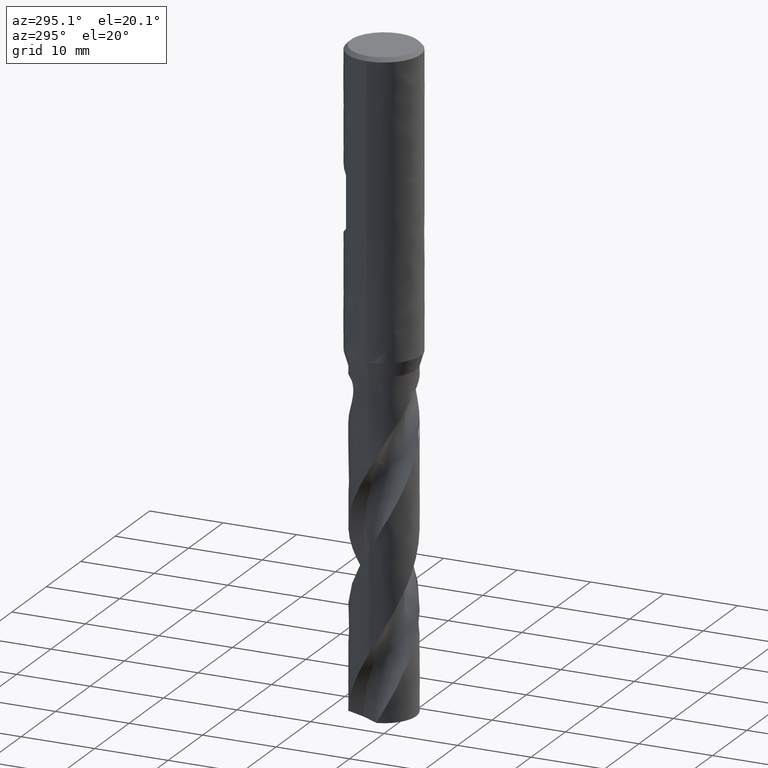
[diagram: clean part render]
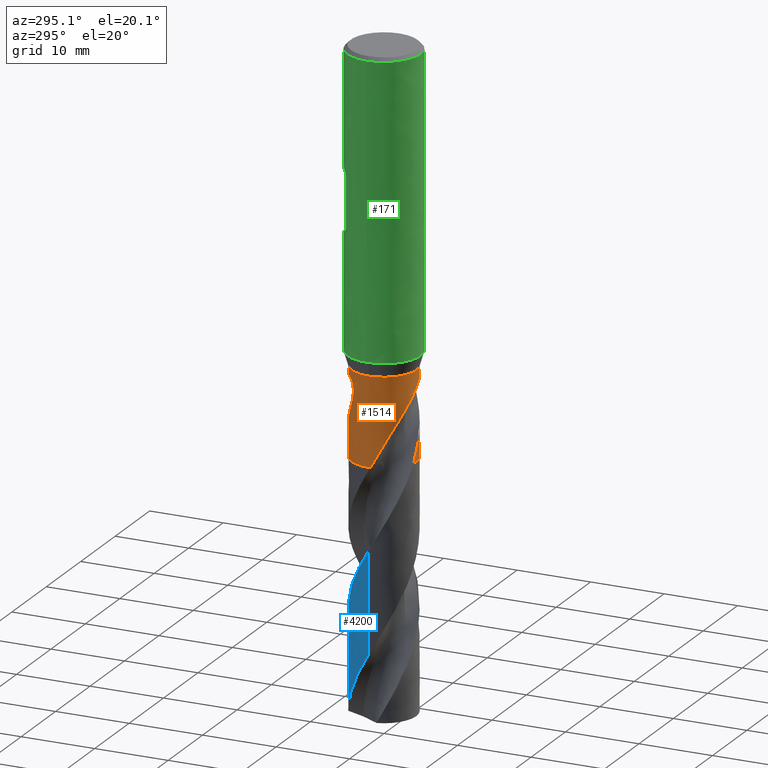
[diagram: same view with three faces highlighted in distinct colors, each labeled with its STEP entity id]
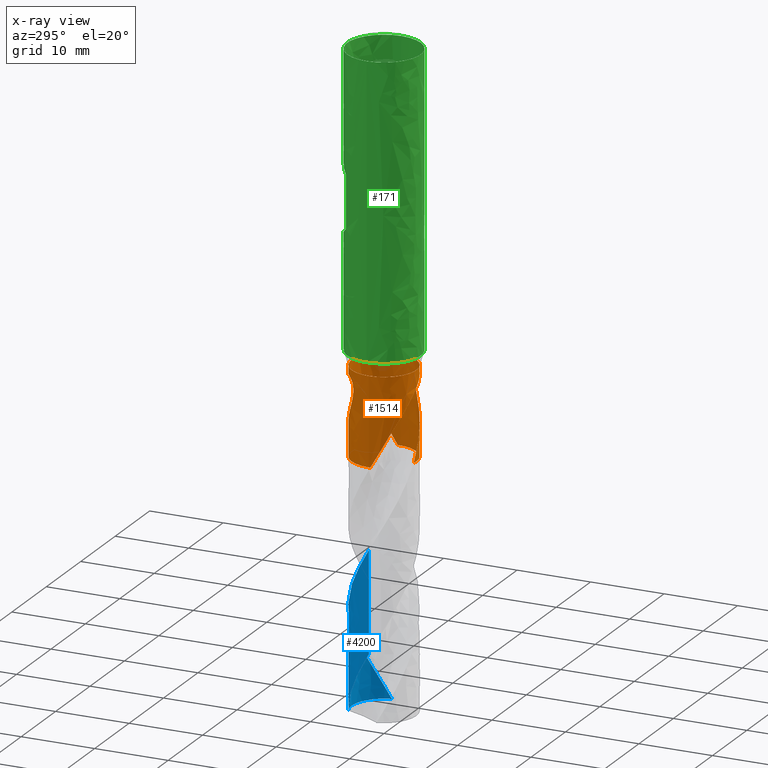
[diagram: x-ray of the same camera — body ghosted, the three highlighted faces saturated]
A machine part, auxiliary view with three faces highlighted in distinct colors.
The next image is the same camera in x-ray (body ghosted, the three faces saturated) — at least one of them is partly hidden behind the body in this view.
Their STEP definitions:

[orange] entity #1514 — the highlighted face is a freeform B-spline surface patch.
#75 = VERTEX_POINT('', #76);
#76 = CARTESIAN_POINT('', (-4.4, 2.84118057402186E-15, -42.));
#90 = EDGE_CURVE('', #75, #75, #91, .T.);
#91 = CIRCLE('', #92, 4.4);
#92 = AXIS2_PLACEMENT_3D('', #93, #94, #95);
#93 = CARTESIAN_POINT('', (1.57474777179495E-31, 2.57175827820944E-15, -42.));
#94 = DIRECTION('', (3.74939945665464E-33, 6.12323399573677E-17, -1.));
#95 = DIRECTION('', (-1., 6.12323399573677E-17, 0.));
#435 = VERTEX_POINT('', #436);
#436 = CARTESIAN_POINT('', (-4.39544496022311, -0.200158940967555, -54.));
#445 = VERTEX_POINT('', #446);
#446 = CARTESIAN_POINT('', (-1.28333116448436, -4.20868876519317, -45.6046122001799));
#463 = EDGE_CURVE('', #445, #435, #464, .T.);
#464 = B_SPLINE_CURVE_WITH_KNOTS('', 3, (#465, #466, #467, #468, #469, #470, #471, #472, #473, #474, #475, #476, #477, #478, #479, #480, #481, #482, #483, #484, #485, #486, #487, #488, #489, #490, #491, #492, #493, #494, #495, #496, #497, #498, #499, #500, #501, #502, #503, #504, #505, #506, #507, #508, #509, #510, #511, #512, #513, #514, #515, #516, #517, #518, #519, #520, #521, #522, #523, #524, #525, #526, #527, #528, #529, #530, #531, #532, #533, #534, #535, #536, #537, #538, #539, #540, #541, #542, #543, #544, #545, #546, #547, #548, #549, #550, #551, #552, #553, #554, #555, #556, #557, #558), .UNSPECIFIED., .F., .U., (4, 3, 3, 3, 3, 3, 3, 3, 3, 3, 3, 3, 3, 3, 3, 3, 3, 3, 3, 3, 3, 3, 3, 3, 3, 3, 3, 3, 3, 3, 3, 4), (0., 0.442302407224654, 0.884635773747598, 1.17978125956742, 1.47494903578894, 1.77014056562162, 2.21270267598879, 2.5079654622913, 2.80325981630703, 3.09858717887338, 3.39395701826002, 3.68936781423816, 3.88635466074792, 4.55111711164273, 4.84661201163092, 5.14215436724508, 5.43775629071907, 5.73338875910427, 5.93043246174539, 6.12743373865128, 6.32441637771221, 6.52140472290082, 6.65275564100724, 7.0959491097545, 7.53899240692866, 7.98195951292061, 8.42491716959876, 8.86784842451189, 9.31072835139764, 9.50767918400337, 9.95052535673036, 10.0073790916599), .UNSPECIFIED.);
#465 = CARTESIAN_POINT('', (-1.28333116448436, -4.20868876519317, -45.6046122001799));
#466 = CARTESIAN_POINT('', (-1.37435692035986, -4.18093280703065, -45.717221005056));
#467 = CARTESIAN_POINT('', (-1.46383458698619, -4.15041920426069, -45.8304450104836));
#468 = CARTESIAN_POINT('', (-1.55157335400753, -4.11735596313148, -45.9442235463745));
#469 = CARTESIAN_POINT('', (-1.63931826237157, -4.0842904077152, -46.0580100462817));
#470 = CARTESIAN_POINT('', (-1.72536325992022, -4.04865987627458, -46.1724029757238));
#471 = CARTESIAN_POINT('', (-1.80952559437328, -4.01068786161531, -46.2873581627406));
#472 = CARTESIAN_POINT('', (-1.8656826355776, -3.98535115956576, -46.3640616336687));
#473 = CARTESIAN_POINT('', (-1.9210168910539, -3.95896578619329, -46.4410326674584));
#474 = CARTESIAN_POINT('', (-1.97548642748073, -3.93159679708378, -46.5182530807994));
#475 = CARTESIAN_POINT('', (-2.0299600776342, -3.90422574097412, -46.5954793260915));
#476 = CARTESIAN_POINT('', (-2.08357893455183, -3.87586584499111, -46.6729691237042));
#477 = CARTESIAN_POINT('', (-2.13630284882385, -3.84658421695237, -46.7507072826658));
#478 = CARTESIAN_POINT('', (-2.18903100605007, -3.81730023247618, -46.8284516976017));
#479 = CARTESIAN_POINT('', (-2.24087345970959, -3.78708911460297, -46.9064582095908));
#480 = CARTESIAN_POINT('', (-2.29179102054067, -3.75602102206167, -46.9847153497753));
#481 = CARTESIAN_POINT('', (-2.36812851975321, -3.70944258328344, -47.1020413622492));
#482 = CARTESIAN_POINT('', (-2.4424066545063, -3.66092532001566, -47.2199710379787));
#483 = CARTESIAN_POINT('', (-2.51452947628271, -3.61069820296654, -47.3384526535991));
#484 = CARTESIAN_POINT('', (-2.56264743490333, -3.57718833354829, -47.4174996644801));
#485 = CARTESIAN_POINT('', (-2.60981646306358, -3.54291056605407, -47.4968082542823));
#486 = CARTESIAN_POINT('', (-2.65601100398344, -3.50793465542317, -47.576365964683));
#487 = CARTESIAN_POINT('', (-2.70221048374452, -3.47295500537922, -47.6559321809134));
#488 = CARTESIAN_POINT('', (-2.74744247098585, -3.43727155926854, -47.7357598296807));
#489 = CARTESIAN_POINT('', (-2.79168236083608, -3.40095715882996, -47.8158400836729));
#490 = CARTESIAN_POINT('', (-2.83592719590325, -3.36463869910034, -47.8959292891843));
#491 = CARTESIAN_POINT('', (-2.87918502578878, -3.3276849799941, -47.9762843220042));
#492 = CARTESIAN_POINT('', (-2.92144355087373, -3.29016224205712, -48.0568893961749));
#493 = CARTESIAN_POINT('', (-2.963708153986, -3.25263410723925, -48.1375060637423));
#494 = CARTESIAN_POINT('', (-3.00497944943067, -3.21453119113331, -48.2183841401529));
#495 = CARTESIAN_POINT('', (-3.04524703468513, -3.17592041741311, -48.2995101803577));
#496 = CARTESIAN_POINT('', (-3.08552020352606, -3.13730428984335, -48.3806474696666));
#497 = CARTESIAN_POINT('', (-3.12479496211543, -3.09817475244513, -48.4620438312076));
#498 = CARTESIAN_POINT('', (-3.16306128748462, -3.05860152547144, -48.5436896590436));
#499 = CARTESIAN_POINT('', (-3.18857817063384, -3.03221316968386, -48.598133011741));
#500 = CARTESIAN_POINT('', (-3.21364846836818, -3.00562573771466, -48.6526914424403));
#501 = CARTESIAN_POINT('', (-3.23826938085771, -2.97886075824289, -48.7073630241059));
#502 = CARTESIAN_POINT('', (-3.32135644184581, -2.88853821302197, -48.8918606962413));
#503 = CARTESIAN_POINT('', (-3.39935064971415, -2.79615806744498, -49.0777232592066));
#504 = CARTESIAN_POINT('', (-3.47224409277695, -2.70250272158523, -49.2648495135177));
#505 = CARTESIAN_POINT('', (-3.50464610441079, -2.66087179459629, -49.3480293828506));
#506 = CARTESIAN_POINT('', (-3.53604785319484, -2.6189810215703, -49.4314753810107));
#507 = CARTESIAN_POINT('', (-3.56645703894318, -2.57689429146266, -49.5151766574232));
#508 = CARTESIAN_POINT('', (-3.59687110831877, -2.53480080234794, -49.5988913760185));
#509 = CARTESIAN_POINT('', (-3.62629864592658, -2.49250272405397, -49.6828677547594));
#510 = CARTESIAN_POINT('', (-3.65475534269441, -2.45005375146075, -49.76708967997));
#511 = CARTESIAN_POINT('', (-3.68321777503446, -2.40759622309067, -49.8513285804795));
#512 = CARTESIAN_POINT('', (-3.71071202706675, -2.36498269761707, -49.9358218992073));
#513 = CARTESIAN_POINT('', (-3.73724327913737, -2.32228608757469, -50.0205687946283));
#514 = CARTESIAN_POINT('', (-3.76377727271497, -2.27958506563895, -50.1053244470506));
#515 = CARTESIAN_POINT('', (-3.78935073862763, -2.23679601095886, -50.1903423939859));
#516 = CARTESIAN_POINT('', (-3.81395861899318, -2.19401906386617, -50.2756391449698));
#517 = CARTESIAN_POINT('', (-3.83036015935126, -2.16550755398749, -50.3324907747279));
#518 = CARTESIAN_POINT('', (-3.84633254666598, -2.13700248758584, -50.3894711004004));
#519 = CARTESIAN_POINT('', (-3.86188790732493, -2.10851174795339, -50.4465704264718));
#520 = CARTESIAN_POINT('', (-3.877439918739, -2.08002714269905, -50.5036574584132));
#521 = CARTESIAN_POINT('', (-3.89257586636063, -2.05155582748216, -50.5608658975767));
#522 = CARTESIAN_POINT('', (-3.90731924353429, -2.02308090028714, -50.6181719039124));
#523 = CARTESIAN_POINT('', (-3.9220612258704, -1.99460866704054, -50.6754724886566));
#524 = CARTESIAN_POINT('', (-3.93641144171953, -1.96613183810877, -50.7328727474493));
#525 = CARTESIAN_POINT('', (-3.95040260720864, -1.93760657538087, -50.7903349767467));
#526 = CARTESIAN_POINT('', (-3.96439417798918, -1.90908048634263, -50.8477988705909));
#527 = CARTESIAN_POINT('', (-3.97802734655647, -1.88050502360136, -50.9053265090929));
#528 = CARTESIAN_POINT('', (-3.99134103701224, -1.85180904152185, -50.9628668181241));
#529 = CARTESIAN_POINT('', (-4.00021854427327, -1.8326746933019, -51.0012344302391));
#530 = CARTESIAN_POINT('', (-4.00895427183926, -1.81348589052171, -51.0396079931026));
#531 = CARTESIAN_POINT('', (-4.01756046311071, -1.79421512791796, -51.077969148675));
#532 = CARTESIAN_POINT('', (-4.04659876613352, -1.72919330510252, -51.2074042059122));
#533 = CARTESIAN_POINT('', (-4.074162692291, -1.66322889476886, -51.3367084821995));
#534 = CARTESIAN_POINT('', (-4.1001554378098, -1.59647279519531, -51.465907920576));
#535 = CARTESIAN_POINT('', (-4.12613937595268, -1.52973931524321, -51.5950635810446));
#536 = CARTESIAN_POINT('', (-4.15055792329288, -1.46220554955735, -51.7241328491774));
#537 = CARTESIAN_POINT('', (-4.17335098711148, -1.39396611808741, -51.8531040213571));
#538 = CARTESIAN_POINT('', (-4.19614013115409, -1.32573842191058, -51.9820530140656));
#539 = CARTESIAN_POINT('', (-4.21731022341984, -1.25678897930152, -52.1109187158285));
#540 = CARTESIAN_POINT('', (-4.2368119163847, -1.18719197486363, -52.2396748701556));
#541 = CARTESIAN_POINT('', (-4.25631319334211, -1.11759645505953, -52.3684282778739));
#542 = CARTESIAN_POINT('', (-4.27414877379436, -1.04734338034394, -52.4970912699793));
#543 = CARTESIAN_POINT('', (-4.29026919447864, -0.976519451371864, -52.6256423466017));
#544 = CARTESIAN_POINT('', (-4.30638865433167, -0.905699743743983, -52.7541857611479));
#545 = CARTESIAN_POINT('', (-4.32079564786519, -0.834296502396034, -52.8826353802977));
#546 = CARTESIAN_POINT('', (-4.33344100541794, -0.762423145347997, -53.0109825379471));
#547 = CARTESIAN_POINT('', (-4.34608489759373, -0.690558117171762, -53.1393148223935));
#548 = CARTESIAN_POINT('', (-4.35696926738238, -0.618212839061457, -53.2675646672317));
#549 = CARTESIAN_POINT('', (-4.36605308440799, -0.545509362093334, -53.395725949296));
#550 = CARTESIAN_POINT('', (-4.3700927015092, -0.513177776367848, -53.4527198875579));
#551 = CARTESIAN_POINT('', (-4.37377656341064, -0.48077400857724, -53.5096992575605));
#552 = CARTESIAN_POINT('', (-4.37710173500812, -0.448308377558211, -53.5666631494293));
#553 = CARTESIAN_POINT('', (-4.38457842092066, -0.375309039338985, -53.6947471040081));
#554 = CARTESIAN_POINT('', (-4.39024205916746, -0.301980114634303, -53.8227623900311));
#555 = CARTESIAN_POINT('', (-4.39406398452294, -0.228476913316008, -53.9507193199558));
#556 = CARTESIAN_POINT('', (-4.39455465316696, -0.21904038257105, -53.9671467609598));
#557 = CARTESIAN_POINT('', (-4.39501500046949, -0.209600759669216, -53.9835738963727));
#558 = CARTESIAN_POINT('', (-4.39544496022311, -0.200158940967555, -54.));
#593 = VERTEX_POINT('', #594);
#594 = CARTESIAN_POINT('', (-0.673859656889685, -4.34809304900625, -54.));
#601 = EDGE_CURVE('', #602, #593, #604, .T.);
#602 = VERTEX_POINT('', #603);
#603 = CARTESIAN_POINT('', (0.672035730228885, -4.34837532617595, -51.5976103910185));
#604 = B_SPLINE_CURVE_WITH_KNOTS('', 3, (#605, #606, #607, #608, #609, #610, #611, #612, #613, #614, #615, #616, #617, #618, #619, #620, #621, #622, #623, #624, #625, #626, #627, #628, #629, #630, #631, #632, #633, #634, #635), .UNSPECIFIED., .F., .U., (4, 3, 3, 3, 3, 3, 3, 3, 3, 3, 4), (0., 0.295394553700983, 0.590761876495582, 1.03361816456307, 1.32896003029052, 1.38733655202443, 1.44572833952419, 1.8895882512187, 2.18537400126383, 2.62919306334221, 2.75634163523595), .UNSPECIFIED.);
#605 = CARTESIAN_POINT('', (0.672035730228887, -4.34837532617595, -51.5976103910185));
#606 = CARTESIAN_POINT('', (0.62561708836349, -4.35554926668068, -51.6841503886698));
#607 = CARTESIAN_POINT('', (0.578928747825237, -4.36200379000339, -51.7706089018156));
#608 = CARTESIAN_POINT('', (0.531993919039684, -4.36772051190376, -51.8569788495176));
#609 = CARTESIAN_POINT('', (0.48506341693488, -4.3734367068089, -51.9433408352179));
#610 = CARTESIAN_POINT('', (0.437880775969382, -4.37841581328906, -52.0296182133602));
#611 = CARTESIAN_POINT('', (0.390480644484552, -4.38263902988633, -52.1158094627007));
#612 = CARTESIAN_POINT('', (0.319411691816823, -4.38897107098104, -52.2450395223624));
#613 = CARTESIAN_POINT('', (0.247845671430357, -4.39360406284123, -52.3740920441947));
#614 = CARTESIAN_POINT('', (0.175902273899957, -4.39648250195979, -52.5029608194582));
#615 = CARTESIAN_POINT('', (0.127923058461649, -4.39840213955457, -52.5889036987755));
#616 = CARTESIAN_POINT('', (0.0797717695869867, -4.39954181797334, -52.6747717436987));
#617 = CARTESIAN_POINT('', (0.0314848777214435, -4.39988735111195, -52.7605629163725));
#618 = CARTESIAN_POINT('', (0.0219406135328591, -4.39995564831297, -52.7775201812825));
#619 = CARTESIAN_POINT('', (0.0123910085265404, -4.39999292656607, -52.7944745946227));
#620 = CARTESIAN_POINT('', (0.0028363821144782, -4.39999908578814, -52.8114261595307));
#621 = CARTESIAN_POINT('', (-0.00672074288237721, -4.40000524662088, -52.8283821573615));
#622 = CARTESIAN_POINT('', (-0.0162829171989598, -4.39998027216361, -52.8453353501464));
#623 = CARTESIAN_POINT('', (-0.0258498217340019, -4.39992406601708, -52.8622857400265));
#624 = CARTESIAN_POINT('', (-0.0985717845978949, -4.39949682005829, -52.9911326015036));
#625 = CARTESIAN_POINT('', (-0.171573180451211, -4.39726381160281, -53.1198290571802));
#626 = CARTESIAN_POINT('', (-0.244715407818978, -4.39318954396196, -53.2483739717169));
#627 = CARTESIAN_POINT('', (-0.293456976976135, -4.39047447490913, -53.3340355801636));
#628 = CARTESIAN_POINT('', (-0.342265356954179, -4.38694179353285, -53.4196372579199));
#629 = CARTESIAN_POINT('', (-0.39110060918654, -4.38258374860012, -53.5051775929046));
#630 = CARTESIAN_POINT('', (-0.46437667417216, -4.37604461203169, -53.6335287093359));
#631 = CARTESIAN_POINT('', (-0.537730099990358, -4.36764400286221, -53.7617544395155));
#632 = CARTESIAN_POINT('', (-0.610958335257735, -4.35737649424276, -53.8898885681557));
#633 = CARTESIAN_POINT('', (-0.63193730243626, -4.35443498233078, -53.9265973823089));
#634 = CARTESIAN_POINT('', (-0.652907103033646, -4.35134023819776, -53.9633018686852));
#635 = CARTESIAN_POINT('', (-0.673859656889685, -4.34809304900625, -54.));
#638 = VERTEX_POINT('', #639);
#639 = CARTESIAN_POINT('', (1.78733837084482, -4.02062452214898, -49.5580081394063));
#648 = EDGE_CURVE('', #649, #638, #651, .T.);
#649 = VERTEX_POINT('', #650);
#650 = CARTESIAN_POINT('', (2.68918934283516, -3.48256524395191, -43.));
#651 = B_SPLINE_CURVE_WITH_KNOTS('', 3, (#652, #653, #654, #655, #656, #657, #658, #659, #660, #661, #662, #663, #664, #665, #666, #667, #668, #669, #670, #671, #672, #673, #674, #675, #676, #677, #678, #679, #680, #681, #682, #683, #684, #685, #686, #687, #688, #689, #690, #691, #692, #693, #694, #695, #696, #697, #698, #699, #700, #701, #702, #703, #704, #705, #706, #707, #708, #709, #710, #711, #712, #713, #714, #715, #716, #717, #718, #719, #720, #721, #722, #723, #724, #725, #726, #727, #728, #729, #730, #731, #732, #733, #734, #735, #736, #737, #738, #739, #740, #741, #742, #743, #744, #745, #746, #747, #748, #749, #750, #751, #752, #753, #754, #755, #756, #757, #758, #759, #760, #761, #762, #763, #764, #765, #766), .UNSPECIFIED., .F., .U., (4, 3, 3, 3, 3, 3, 3, 3, 3, 3, 3, 3, 3, 3, 3, 3, 3, 3, 3, 3, 3, 3, 3, 3, 3, 3, 3, 3, 3, 3, 3, 3, 3, 3, 3, 3, 3, 3, 4), (0., 0.197340762180901, 0.39420386830539, 0.525165455937089, 0.655938124061524, 0.786531737734029, 0.916977113128085, 1.04732603700523, 1.1776441980082, 1.30799859797612, 1.43844485438624, 1.5690197367939, 1.69974045591391, 1.83060856224578, 1.91801490457375, 1.97634071501211, 2.17304783810686, 2.37002546774334, 2.5672165282343, 2.76456980336791, 2.96204331861966, 3.15960288627846, 3.45648752428875, 3.7534694602908, 4.05047464630018, 4.34744798306387, 4.64435745154921, 4.94117519627207, 5.23787926525665, 5.53446034761529, 5.83091092209351, 6.12722629350487, 6.42341624776137, 6.71948578481888, 7.01543887509568, 7.31127198362756, 7.60699735702041, 7.90263515881968, 8.00580460872549), .UNSPECIFIED.);
#652 = CARTESIAN_POINT('', (2.68918934284042, -3.48256524394784, -43.));
#653 = CARTESIAN_POINT('', (2.74125387216106, -3.44236172511, -43.0000606952498));
#654 = CARTESIAN_POINT('', (2.79250720535752, -3.40090882014556, -43.0033407245304));
#655 = CARTESIAN_POINT('', (2.84242988335984, -3.35865930963278, -43.0103938732418));
#656 = CARTESIAN_POINT('', (2.89223172535628, -3.31651206250621, -43.0174299500661));
#657 = CARTESIAN_POINT('', (2.94090028865834, -3.2734053776141, -43.0282585314879));
#658 = CARTESIAN_POINT('', (2.98777526041497, -3.23004628345357, -43.0433861968749));
#659 = CARTESIAN_POINT('', (3.0189584558968, -3.20120199707955, -43.0534497538065));
#660 = CARTESIAN_POINT('', (3.04942940162971, -3.17217424433848, -43.0654407476492));
#661 = CARTESIAN_POINT('', (3.07896262263942, -3.14324500610267, -43.0794602963898));
#662 = CARTESIAN_POINT('', (3.10845324030519, -3.11435749993144, -43.0934596211373));
#663 = CARTESIAN_POINT('', (3.13708428191376, -3.08549395220221, -43.1095205720093));
#664 = CARTESIAN_POINT('', (3.16461964008412, -3.05698912879876, -43.1276711843861));
#665 = CARTESIAN_POINT('', (3.19211729673369, -3.02852333431172, -43.1457969448731));
#666 = CARTESIAN_POINT('', (3.21860180880306, -3.00033308963351, -43.1660621902082));
#667 = CARTESIAN_POINT('', (3.24384782193164, -2.97278510964875, -43.1883940819797));
#668 = CARTESIAN_POINT('', (3.26906517802702, -2.94526839968564, -43.21070062457));
#669 = CARTESIAN_POINT('', (3.29312638476658, -2.91830651850874, -43.2351415180181));
#670 = CARTESIAN_POINT('', (3.31584311408443, -2.89226285852079, -43.2615298525904));
#671 = CARTESIAN_POINT('', (3.33854304661669, -2.86623845525623, -43.2878986755863));
#672 = CARTESIAN_POINT('', (3.35997528826213, -2.84104653817, -43.3162987541034));
#673 = CARTESIAN_POINT('', (3.38001117144529, -2.81700629763319, -43.3464401135359));
#674 = CARTESIAN_POINT('', (3.40004232607883, -2.79297173069054, -43.3765743594855));
#675 = CARTESIAN_POINT('', (3.41874354191843, -2.7700109737233, -43.4085450271117));
#676 = CARTESIAN_POINT('', (3.43605601564252, -2.74836661625898, -43.4419932017485));
#677 = CARTESIAN_POINT('', (3.45337330363136, -2.72671623991666, -43.4754506776769));
#678 = CARTESIAN_POINT('', (3.46935498288873, -2.70631696552346, -43.5104853645598));
#679 = CARTESIAN_POINT('', (3.48400692877927, -2.68732129084299, -43.5467140104027));
#680 = CARTESIAN_POINT('', (3.49866919941237, -2.66831223053769, -43.5829681853763));
#681 = CARTESIAN_POINT('', (3.51204112041658, -2.65065614886287, -43.6205136442318));
#682 = CARTESIAN_POINT('', (3.52417709711524, -2.63442133839072, -43.6589823426154));
#683 = CARTESIAN_POINT('', (3.53632504044408, -2.61817051965012, -43.6974889729017));
#684 = CARTESIAN_POINT('', (3.54726424168243, -2.60330451604448, -43.7370083780626));
#685 = CARTESIAN_POINT('', (3.55707817216844, -2.5898252599515, -43.7772130871955));
#686 = CARTESIAN_POINT('', (3.56690306365499, -2.57633094912244, -43.8174627002371));
#687 = CARTESIAN_POINT('', (3.57562029724196, -2.56419885904283, -43.8584763163576));
#688 = CARTESIAN_POINT('', (3.58332557603088, -2.55338555963704, -43.8999776115449));
#689 = CARTESIAN_POINT('', (3.59103954249812, -2.54256006826916, -43.9415256993158));
#690 = CARTESIAN_POINT('', (3.59775225368301, -2.53303793115876, -43.9836284748913));
#691 = CARTESIAN_POINT('', (3.60355988928657, -2.5247487249873, -44.0260607806167));
#692 = CARTESIAN_POINT('', (3.60743878843097, -2.51921239369499, -44.0544011665515));
#693 = CARTESIAN_POINT('', (3.6109169312681, -2.51422125877822, -44.0829103557387));
#694 = CARTESIAN_POINT('', (3.6140214164821, -2.50975082452598, -44.1115329287683));
#695 = CARTESIAN_POINT('', (3.61609302377372, -2.50676772634537, -44.1306326270776));
#696 = CARTESIAN_POINT('', (3.61799882855139, -2.50401556023201, -44.1497883801222));
#697 = CARTESIAN_POINT('', (3.61974644029907, -2.50148669953334, -44.1689857659802));
#698 = CARTESIAN_POINT('', (3.62564036061648, -2.49295797255976, -44.2337300449653));
#699 = CARTESIAN_POINT('', (3.62974569719344, -2.48695938679323, -44.2990262045033));
#700 = CARTESIAN_POINT('', (3.63232068829905, -2.48319278698911, -44.3644363053175));
#701 = CARTESIAN_POINT('', (3.63489922046573, -2.47942100745448, -44.4299363564085));
#702 = CARTESIAN_POINT('', (3.63594773522414, -2.47787899307369, -44.4956667640829));
#703 = CARTESIAN_POINT('', (3.63567318682385, -2.47828175932643, -44.5613241646135));
#704 = CARTESIAN_POINT('', (3.63539834094256, -2.47868496198784, -44.6270527068018));
#705 = CARTESIAN_POINT('', (3.63379693040716, -2.48103684911726, -44.6927957022791));
#706 = CARTESIAN_POINT('', (3.63103129563344, -2.48507781168529, -44.7583434044254));
#707 = CARTESIAN_POINT('', (3.62826338577456, -2.48912209845725, -44.8239450278654));
#708 = CARTESIAN_POINT('', (3.62432611604431, -2.49486211747681, -44.8894178738561));
#709 = CARTESIAN_POINT('', (3.6193433248185, -2.50206992250251, -44.9546161093901));
#710 = CARTESIAN_POINT('', (3.61435749776061, -2.50928211897968, -45.0198540678198));
#711 = CARTESIAN_POINT('', (3.60832051104517, -2.51796967085598, -45.0848687312696));
#712 = CARTESIAN_POINT('', (3.60132694746573, -2.527932795281, -45.1495579242596));
#713 = CARTESIAN_POINT('', (3.59433033632328, -2.53790026130512, -45.2142753066539));
#714 = CARTESIAN_POINT('', (3.58637159127444, -2.54915079717442, -45.2787074999629));
#715 = CARTESIAN_POINT('', (3.57752394419557, -2.56150784279639, -45.3427829640272));
#716 = CARTESIAN_POINT('', (3.56422805308089, -2.58007751805853, -45.4390730155773));
#717 = CARTESIAN_POINT('', (3.54891488004302, -2.60115928954997, -45.5346415546155));
#718 = CARTESIAN_POINT('', (3.53176879360461, -2.62423497204816, -45.6293353357444));
#719 = CARTESIAN_POINT('', (3.51461708787991, -2.64731821713894, -45.7240601508627));
#720 = CARTESIAN_POINT('', (3.49561507835003, -2.67241767118143, -45.8179910172961));
#721 = CARTESIAN_POINT('', (3.47489433301464, -2.69909417664199, -45.911043811889));
#722 = CARTESIAN_POINT('', (3.45417196550153, -2.72577277054254, -46.0041038913632));
#723 = CARTESIAN_POINT('', (3.43171604408439, -2.75404692477982, -46.0963463019412));
#724 = CARTESIAN_POINT('', (3.407630949831, -2.783532164311, -46.1877348743351));
#725 = CARTESIAN_POINT('', (3.38354843833414, -2.81301424200298, -46.2791136467079));
#726 = CARTESIAN_POINT('', (3.35782555816425, -2.84372112028165, -46.3696858580929));
#727 = CARTESIAN_POINT('', (3.3305487799129, -2.87531647382001, -46.4594463800856));
#728 = CARTESIAN_POINT('', (3.30327786791501, -2.90690503233475, -46.5491875978201));
#729 = CARTESIAN_POINT('', (3.27444207731478, -2.93939507960006, -46.6381532640593));
#730 = CARTESIAN_POINT('', (3.24412168448379, -2.97248624828813, -46.7263613938667));
#731 = CARTESIAN_POINT('', (3.21381065848278, -3.00556719417491, -46.8145422736791));
#732 = CARTESIAN_POINT('', (3.1820056548822, -3.03925998478846, -46.9019945307906));
#733 = CARTESIAN_POINT('', (3.14879140121541, -3.07329020947128, -46.9887570342347));
#734 = CARTESIAN_POINT('', (3.11558986799702, -3.10730740120379, -47.0754863092353));
#735 = CARTESIAN_POINT('', (3.08097231443793, -3.14166979907466, -47.1615503377794));
#736 = CARTESIAN_POINT('', (3.0450279982378, -3.17613042709959, -47.2470017832475));
#737 = CARTESIAN_POINT('', (3.00909858129465, -3.21057677087022, -47.3324178082881));
#738 = CARTESIAN_POINT('', (2.97183509863609, -3.24512929103684, -47.4172403890867));
#739 = CARTESIAN_POINT('', (2.93333570776498, -3.27956424324189, -47.5015339351266));
#740 = CARTESIAN_POINT('', (2.8948532582101, -3.31398404265098, -47.5857903885375));
#741 = CARTESIAN_POINT('', (2.8551285121258, -3.34829296500965, -47.6695339106882));
#742 = CARTESIAN_POINT('', (2.81427436258756, -3.38228618128068, -47.7528416004266));
#743 = CARTESIAN_POINT('', (2.7734388455189, -3.41626389416771, -47.8361112957872));
#744 = CARTESIAN_POINT('', (2.7314702091421, -3.44993017194185, -47.9189605464272));
#745 = CARTESIAN_POINT('', (2.68849133529713, -3.48310412420189, -48.0014721934063));
#746 = CARTESIAN_POINT('', (2.64553065250332, -3.51626403539923, -48.0839489168647));
#747 = CARTESIAN_POINT('', (2.60155327271628, -3.54893766032364, -48.1660990429225));
#748 = CARTESIAN_POINT('', (2.55669552098004, -3.58096467631291, -48.2480115709335));
#749 = CARTESIAN_POINT('', (2.51185600634043, -3.61297867159198, -48.3298907970818));
#750 = CARTESIAN_POINT('', (2.46613088614692, -3.64435068625459, -48.4115430459926));
#751 = CARTESIAN_POINT('', (2.41967718482995, -3.67493704996621, -48.4930673591167));
#752 = CARTESIAN_POINT('', (2.37324175416664, -3.7055113837891, -48.5745596080037));
#753 = CARTESIAN_POINT('', (2.32607325214911, -3.73530387902373, -48.6559342892118));
#754 = CARTESIAN_POINT('', (2.27835026682672, -3.76418916390412, -48.7372987945416));
#755 = CARTESIAN_POINT('', (2.23064662878348, -3.79306273845947, -48.8186303140515));
#756 = CARTESIAN_POINT('', (2.18238335354302, -3.82103336430394, -48.8999611128589));
#757 = CARTESIAN_POINT('', (2.13374511081225, -3.84800361253531, -48.9813924551686));
#758 = CARTESIAN_POINT('', (2.08512458093271, -3.87496403886589, -49.0627941421871));
#759 = CARTESIAN_POINT('', (2.03612372957487, -3.90092804632151, -49.144306062446));
#760 = CARTESIAN_POINT('', (1.98693374284349, -3.92582402834742, -49.2260225873812));
#761 = CARTESIAN_POINT('', (1.9377583224832, -3.95071263805759, -49.3077149140332));
#762 = CARTESIAN_POINT('', (1.88838797447317, -3.97453697655408, -49.3896221483743));
#763 = CARTESIAN_POINT('', (1.83901787812773, -3.99725071066684, -49.4718290882531));
#764 = CARTESIAN_POINT('', (1.82178907433215, -4.00517717825474, -49.5005170459978));
#765 = CARTESIAN_POINT('', (1.8045597368895, -4.0129688934872, -49.5292422674474));
#766 = CARTESIAN_POINT('', (1.78733837084482, -4.02062452214899, -49.5580081394063));
#768 = EDGE_CURVE('', #649, #769, #771, .T.);
#769 = VERTEX_POINT('', #770);
#770 = CARTESIAN_POINT('', (2.68623713573927, -3.48484290185013, -43.));
#771 = LINE('', #772, #773);
#772 = CARTESIAN_POINT('', (2.68918934283516, -3.48256524395191, -43.));
#773 = VECTOR('', #774, 0.00372870651008257);
#774 = DIRECTION('', (-0.00295220709588317, -0.00227765789822554, 0.));
#776 = EDGE_CURVE('', #769, #445, #777, .T.);
#777 = B_SPLINE_CURVE_WITH_KNOTS('', 3, (#778, #779, #780, #781, #782, #783, #784, #785, #786, #787, #788, #789, #790, #791, #792, #793, #794, #795, #796, #797, #798, #799, #800, #801, #802, #803, #804, #805, #806, #807, #808, #809, #810, #811, #812, #813, #814, #815, #816, #817, #818, #819, #820, #821, #822, #823, #824, #825, #826, #827, #828, #829, #830, #831, #832, #833, #834, #835), .UNSPECIFIED., .F., .U., (4, 3, 3, 3, 3, 3, 3, 3, 3, 3, 3, 3, 3, 3, 3, 3, 3, 3, 3, 4), (0., 0.197189319905962, 0.393882358889381, 0.590208350808839, 0.786266382955769, 0.982129890447363, 1.17785270468674, 1.37347431861698, 1.56902391156642, 1.86113968005608, 2.15314915450092, 2.4451101817859, 2.73706326329281, 3.02903798424095, 3.22449844382773, 3.26338131365848, 3.70320080388128, 4.14280807004066, 4.58234450618426, 5.06168680023255), .UNSPECIFIED.);
#778 = CARTESIAN_POINT('', (2.68623713573354, -3.48484290185455, -43.));
#779 = CARTESIAN_POINT('', (2.63417853649923, -3.5249714661646, -43.0000605847092));
#780 = CARTESIAN_POINT('', (2.5811628392222, -3.5639701688698, -43.0033205022078));
#781 = CARTESIAN_POINT('', (2.52758152586256, -3.60157349364389, -43.0092733101941));
#782 = CARTESIAN_POINT('', (2.47413506455089, -3.63908217935377, -43.0152111363089));
#783 = CARTESIAN_POINT('', (2.42000608662067, -3.67528918847838, -43.0238399705577));
#784 = CARTESIAN_POINT('', (2.36549070986318, -3.7100476683664, -43.0347305757868));
#785 = CARTESIAN_POINT('', (2.31107706374691, -3.74474128577604, -43.045600858158));
#786 = CARTESIAN_POINT('', (2.25618353132475, -3.77805395736956, -43.0587431280653));
#787 = CARTESIAN_POINT('', (2.20103903134329, -3.80991170271745, -43.0738037786026));
#788 = CARTESIAN_POINT('', (2.14596979652427, -3.84172596633317, -43.0888438732856));
#789 = CARTESIAN_POINT('', (2.09057363839534, -3.87213457086105, -43.1058182277568));
#790 = CARTESIAN_POINT('', (2.03503248958065, -3.90110788960664, -43.1244381104162));
#791 = CARTESIAN_POINT('', (1.97954644752548, -3.93005246163484, -43.1430395188196));
#792 = CARTESIAN_POINT('', (1.92385257351995, -3.95759815970694, -43.1633046751173));
#793 = CARTESIAN_POINT('', (1.86809959604664, -3.98374244891037, -43.1849976037426));
#794 = CARTESIAN_POINT('', (1.8123866672165, -4.00986795807089, -43.2066749498394));
#795 = CARTESIAN_POINT('', (1.75656171933485, -4.03461932310177, -43.2297989614637));
#796 = CARTESIAN_POINT('', (1.70074954475329, -4.05801071782979, -43.2541756680232));
#797 = CARTESIAN_POINT('', (1.64496622837789, -4.08139001781868, -43.2785397703789));
#798 = CARTESIAN_POINT('', (1.58915041464722, -4.1034299769587, -43.3041753180495));
#799 = CARTESIAN_POINT('', (1.53340921784882, -4.12415520690192, -43.3309215955605));
#800 = CARTESIAN_POINT('', (1.4776885429937, -4.14487280654624, -43.357658026035));
#801 = CARTESIAN_POINT('', (1.42200321880461, -4.16429139168031, -43.3855234104549));
#802 = CARTESIAN_POINT('', (1.36644696328389, -4.18244219285038, -43.4143834199015));
#803 = CARTESIAN_POINT('', (1.28345595301859, -4.20955621110285, -43.4574950608461));
#804 = CARTESIAN_POINT('', (1.20066111953955, -4.2338704337628, -43.5028720718921));
#805 = CARTESIAN_POINT('', (1.11833324457905, -4.25550593397181, -43.5501512162455));
#806 = CARTESIAN_POINT('', (1.0360353267923, -4.2771335615321, -43.5974131568323));
#807 = CARTESIAN_POINT('', (0.954107356658795, -4.29611030621751, -43.646632289233));
#808 = CARTESIAN_POINT('', (0.872782542099628, -4.31256891356023, -43.6975221836641));
#809 = CARTESIAN_POINT('', (0.791471220103672, -4.32902479026286, -43.7484036349758));
#810 = CARTESIAN_POINT('', (0.710680632315536, -4.34298029606716, -43.8010073753917));
#811 = CARTESIAN_POINT('', (0.630615812895734, -4.3545750305312, -43.855103917558));
#812 = CARTESIAN_POINT('', (0.550553172456091, -4.36616944944222, -43.909198987476));
#813 = CARTESIAN_POINT('', (0.471145357902204, -4.37541367425302, -43.9648351109935));
#814 = CARTESIAN_POINT('', (0.39257543557652, -4.38245188534743, -44.0218260262679));
#815 = CARTESIAN_POINT('', (0.313999689680805, -4.38949061811114, -44.0788211656853));
#816 = CARTESIAN_POINT('', (0.236200168182608, -4.39432865991301, -44.1372164054074));
#817 = CARTESIAN_POINT('', (0.159342288901115, -4.39711383011282, -44.1968590641217));
#818 = CARTESIAN_POINT('', (0.107890312653162, -4.3989783430594, -44.2367864299066));
#819 = CARTESIAN_POINT('', (0.056839448722137, -4.39992386642932, -44.27728924404));
#820 = CARTESIAN_POINT('', (0.00623561327118974, -4.3999955814895, -44.3183285362059));
#821 = CARTESIAN_POINT('', (-0.00383098716009599, -4.40000984773729, -44.3264924659266));
#822 = CARTESIAN_POINT('', (-0.0138802684219565, -4.39998954253113, -44.3346779300593));
#823 = CARTESIAN_POINT('', (-0.0239118815809551, -4.39993502473835, -44.3428846444745));
#824 = CARTESIAN_POINT('', (-0.137383418144709, -4.39931835246254, -44.4357140309413));
#825 = CARTESIAN_POINT('', (-0.24867524886866, -4.39431923813741, -44.5313272137638));
#826 = CARTESIAN_POINT('', (-0.357314994877583, -4.3854675913106, -44.6293706675087));
#827 = CARTESIAN_POINT('', (-0.46590231945258, -4.37662021562798, -44.7273668127995));
#828 = CARTESIAN_POINT('', (-0.57198105104548, -4.36391361686023, -44.8279179985125));
#829 = CARTESIAN_POINT('', (-0.675168369498142, -4.34789002538348, -44.9307204762716));
#830 = CARTESIAN_POINT('', (-0.77833906229432, -4.33186901564577, -45.0335063903802));
#831 = CARTESIAN_POINT('', (-0.878737246992533, -4.31251414495668, -45.1386609824863));
#832 = CARTESIAN_POINT('', (-0.976037938823854, -4.29037876439557, -45.245938235624));
#833 = CARTESIAN_POINT('', (-1.08215049969395, -4.26623873133964, -45.3629308678376));
#834 = CARTESIAN_POINT('', (-1.18468260656077, -4.23876910037067, -45.4825731563545));
#835 = CARTESIAN_POINT('', (-1.28333116448436, -4.20868876519317, -45.6046122001799));
#922 = EDGE_CURVE('', #638, #602, #923, .T.);
#923 = B_SPLINE_CURVE_WITH_KNOTS('', 3, (#924, #925, #926, #927, #928, #929, #930, #931, #932, #933, #934, #935, #936, #937, #938, #939, #940, #941, #942, #943, #944, #945, #946, #947, #948, #949, #950, #951, #952, #953, #954, #955, #956, #957), .UNSPECIFIED., .F., .U., (4, 3, 3, 3, 3, 3, 3, 3, 3, 3, 3, 4), (0., 0.295439213313848, 0.590957241649713, 0.787988761540376, 0.87556098015957, 1.07256976588645, 1.26954141510998, 1.46649895564784, 1.66346645532912, 1.79480980914531, 2.23786957490311, 2.35026383726847), .UNSPECIFIED.);
#924 = CARTESIAN_POINT('', (1.78733837084482, -4.02062452214898, -49.5580081394063));
#925 = CARTESIAN_POINT('', (1.73802273679738, -4.0425474160999, -49.6403829760424));
#926 = CARTESIAN_POINT('', (1.68892724807579, -4.0632851863645, -49.7232148989183));
#927 = CARTESIAN_POINT('', (1.6401625020573, -4.082874840948, -49.8065005743406));
#928 = CARTESIAN_POINT('', (1.59138474695148, -4.10246972151028, -49.8898084680807));
#929 = CARTESIAN_POINT('', (1.54292894089793, -4.1209191310675, -49.9735843220524));
#930 = CARTESIAN_POINT('', (1.4949332646164, -4.13825742726875, -50.0578412650301));
#931 = CARTESIAN_POINT('', (1.46293297989881, -4.14981743554332, -50.1140181203973));
#932 = CARTESIAN_POINT('', (1.43113472601117, -4.16088458963389, -50.1704145758565));
#933 = CARTESIAN_POINT('', (1.39958875419546, -4.17146872445781, -50.2270389420296));
#934 = CARTESIAN_POINT('', (1.3855678973197, -4.17617292695906, -50.2522060897856));
#935 = CARTESIAN_POINT('', (1.37159723000991, -4.18078164048621, -50.2774193195101));
#936 = CARTESIAN_POINT('', (1.35767949730612, -4.18529645098105, -50.3026782283831));
#937 = CARTESIAN_POINT('', (1.32636916095427, -4.19545329463993, -50.3595024934792));
#938 = CARTESIAN_POINT('', (1.29532333547998, -4.20513640469721, -50.4165596850759));
#939 = CARTESIAN_POINT('', (1.26451319383345, -4.2143809014636, -50.4738114989384));
#940 = CARTESIAN_POINT('', (1.23370885995292, -4.22362365562606, -50.5310525207331));
#941 = CARTESIAN_POINT('', (1.20313827095142, -4.23242874454124, -50.588491810982));
#942 = CARTESIAN_POINT('', (1.17273911625531, -4.24083517307673, -50.6460773423199));
#943 = CARTESIAN_POINT('', (1.14234213898991, -4.24924099947653, -50.7036587489212));
#944 = CARTESIAN_POINT('', (1.11211506223227, -4.25724886165176, -50.7613891175107));
#945 = CARTESIAN_POINT('', (1.08196107589896, -4.26489861898727, -50.8192032235009));
#946 = CARTESIAN_POINT('', (1.05180556483158, -4.2725487631322, -50.877020252857));
#947 = CARTESIAN_POINT('', (1.0217218904288, -4.27984128922403, -50.9349229171286));
#948 = CARTESIAN_POINT('', (0.99158096872462, -4.28681317326322, -50.9928332452965));
#949 = CARTESIAN_POINT('', (0.971482171968076, -4.29146221756549, -51.0314494471291));
#950 = CARTESIAN_POINT('', (0.951354471539554, -4.29596922240759, -51.0700679923706));
#951 = CARTESIAN_POINT('', (0.931161116471477, -4.3003417277202, -51.1086671620035));
#952 = CARTESIAN_POINT('', (0.86304299015313, -4.31509147426841, -51.2388735147356));
#953 = CARTESIAN_POINT('', (0.794255414343595, -4.32829073328355, -51.3689165734375));
#954 = CARTESIAN_POINT('', (0.72491435803155, -4.33987317481971, -51.4987972625554));
#955 = CARTESIAN_POINT('', (0.707324097127364, -4.34281137881262, -51.5317450618753));
#956 = CARTESIAN_POINT('', (0.689697494628727, -4.34564572354387, -51.5646829078296));
#957 = CARTESIAN_POINT('', (0.672035730228885, -4.34837532617595, -51.5976103910185));
#979 = VERTEX_POINT('', #980);
#980 = CARTESIAN_POINT('', (0.673859656889684, 4.34809304900626, -54.));
#987 = EDGE_CURVE('', #988, #979, #990, .T.);
#988 = VERTEX_POINT('', #989);
#989 = CARTESIAN_POINT('', (-0.672035730228889, 4.34837532617595, -51.5976103910185));
#990 = B_SPLINE_CURVE_WITH_KNOTS('', 3, (#991, #992, #993, #994, #995, #996, #997, #998, #999, #1000, #1001, #1002, #1003, #1004, #1005, #1006, #1007, #1008, #1009, #1010, #1011, #1012, #1013, #1014, #1015, #1016, #1017, #1018, #1019, #1020, #1021), .UNSPECIFIED., .F., .U., (4, 3, 3, 3, 3, 3, 3, 3, 3, 3, 4), (0., 0.295394553700985, 0.590761876495581, 1.03361816456307, 1.32896003029052, 1.38733655202443, 1.44572833952419, 1.88958825121869, 2.18537400126383, 2.62919306334221, 2.75634163523597), .UNSPECIFIED.);
#991 = CARTESIAN_POINT('', (-0.672035730228896, 4.34837532617595, -51.5976103910185));
#992 = CARTESIAN_POINT('', (-0.625617088363498, 4.35554926668069, -51.6841503886698));
#993 = CARTESIAN_POINT('', (-0.578928747825242, 4.3620037900034, -51.7706089018156));
#994 = CARTESIAN_POINT('', (-0.531993919039689, 4.36772051190377, -51.8569788495176));
#995 = CARTESIAN_POINT('', (-0.485063416934885, 4.37343670680891, -51.9433408352179));
#996 = CARTESIAN_POINT('', (-0.437880775969389, 4.37841581328907, -52.0296182133602));
#997 = CARTESIAN_POINT('', (-0.390480644484559, 4.38263902988634, -52.1158094627007));
#998 = CARTESIAN_POINT('', (-0.319411691816831, 4.38897107098105, -52.2450395223624));
#999 = CARTESIAN_POINT('', (-0.247845671430365, 4.39360406284124, -52.3740920441947));
#1000 = CARTESIAN_POINT('', (-0.175902273899965, 4.3964825019598, -52.5029608194582));
#1001 = CARTESIAN_POINT('', (-0.127923058461657, 4.39840213955457, -52.5889036987755));
#1002 = CARTESIAN_POINT('', (-0.0797717695869928, 4.39954181797335, -52.6747717436987));
#1003 = CARTESIAN_POINT('', (-0.0314848777214499, 4.39988735111195, -52.7605629163725));
#1004 = CARTESIAN_POINT('', (-0.0219406135328659, 4.39995564831298, -52.7775201812825));
#1005 = CARTESIAN_POINT('', (-0.012391008526548, 4.39999292656608, -52.7944745946227));
#1006 = CARTESIAN_POINT('', (-0.00283638211448619, 4.39999908578815, -52.8114261595307));
#1007 = CARTESIAN_POINT('', (0.00672074288236959, 4.40000524662088, -52.8283821573615));
#1008 = CARTESIAN_POINT('', (0.0162829171989497, 4.39998027216362, -52.8453353501464));
#1009 = CARTESIAN_POINT('', (0.0258498217339921, 4.39992406601709, -52.8622857400265));
#1010 = CARTESIAN_POINT('', (0.0985717845978846, 4.3994968200583, -52.9911326015036));
#1011 = CARTESIAN_POINT('', (0.171573180451199, 4.39726381160282, -53.1198290571802));
#1012 = CARTESIAN_POINT('', (0.244715407818966, 4.39318954396196, -53.2483739717169));
#1013 = CARTESIAN_POINT('', (0.293456976976122, 4.39047447490913, -53.3340355801636));
#1014 = CARTESIAN_POINT('', (0.34226535695417, 4.38694179353286, -53.4196372579199));
#1015 = CARTESIAN_POINT('', (0.391100609186531, 4.38258374860013, -53.5051775929046));
#1016 = CARTESIAN_POINT('', (0.464376674172151, 4.3760446120317, -53.6335287093359));
#1017 = CARTESIAN_POINT('', (0.537730099990348, 4.36764400286222, -53.7617544395155));
#1018 = CARTESIAN_POINT('', (0.610958335257725, 4.35737649424277, -53.8898885681557));
#1019 = CARTESIAN_POINT('', (0.631937302436254, 4.35443498233078, -53.9265973823089));
#1020 = CARTESIAN_POINT('', (0.652907103033642, 4.35134023819777, -53.9633018686852));
#1021 = CARTESIAN_POINT('', (0.673859656889684, 4.34809304900626, -54.));
#1024 = VERTEX_POINT('', #1025);
#1025 = CARTESIAN_POINT('', (-1.78733837084482, 4.02062452214899, -49.5580081394063));
#1034 = EDGE_CURVE('', #1035, #1024, #1037, .T.);
#1035 = VERTEX_POINT('', #1036);
#1036 = CARTESIAN_POINT('', (-2.68918934283516, 3.48256524395191, -43.));
#1037 = B_SPLINE_CURVE_WITH_KNOTS('', 3, (#1038, #1039, #1040, #1041, #1042, #1043, #1044, #1045, #1046, #1047, #1048, #1049, #1050, #1051, #1052, #1053, #1054, #1055, #1056, #1057, #1058, #1059, #1060, #1061, #1062, #1063, #1064, #1065, #1066, #1067, #1068, #1069, #1070, #1071, #1072, #1073, #1074, #1075, #1076, #1077, #1078, #1079, #1080, #1081, #1082, #1083, #1084, #1085, #1086, #1087, #1088, #1089, #1090, #1091, #1092, #1093, #1094, #1095, #1096, #1097, #1098, #1099, #1100, #1101, #1102, #1103, #1104, #1105, #1106, #1107, #1108, #1109, #1110, #1111, #1112, #1113, #1114, #1115, #1116, #1117, #1118, #1119, #1120, #1121, #1122, #1123, #1124, #1125, #1126, #1127, #1128, #1129, #1130, #1131, #1132, #1133, #1134, #1135, #1136, #1137, #1138, #1139, #1140, #1141, #1142, #1143, #1144, #1145, #1146, #1147, #1148, #1149, #1150, #1151, #1152), .UNSPECIFIED., .F., .U., (4, 3, 3, 3, 3, 3, 3, 3, 3, 3, 3, 3, 3, 3, 3, 3, 3, 3, 3, 3, 3, 3, 3, 3, 3, 3, 3, 3, 3, 3, 3, 3, 3, 3, 3, 3, 3, 3, 4), (0., 0.197340762180902, 0.394203868305394, 0.525165455937093, 0.655938124061532, 0.786531737734034, 0.916977113128091, 1.04732603700524, 1.17764419800821, 1.30799859797613, 1.43844485438625, 1.56901973679391, 1.69974045591392, 1.83060856224579, 1.91801490457377, 1.97634071501211, 2.17304783810686, 2.37002546774335, 2.5672165282343, 2.76456980336792, 2.96204331861967, 3.15960288627846, 3.45648752428875, 3.75346946029081, 4.05047464630019, 4.34744798306388, 4.64435745154922, 4.94117519627209, 5.23787926525666, 5.53446034761531, 5.83091092209353, 6.12722629350489, 6.42341624776139, 6.7194857848189, 7.01543887509569, 7.31127198362757, 7.60699735702043, 7.90263515881969, 8.00580460872569), .UNSPECIFIED.);
#1038 = CARTESIAN_POINT('', (-2.68918934284026, 3.48256524394797, -43.));
#1039 = CARTESIAN_POINT('', (-2.74125387216091, 3.44236172511013, -43.0000606952498));
#1040 = CARTESIAN_POINT('', (-2.79250720535737, 3.40090882014569, -43.0033407245304));
#1041 = CARTESIAN_POINT('', (-2.84242988335969, 3.35865930963291, -43.0103938732418));
#1042 = CARTESIAN_POINT('', (-2.89223172535613, 3.31651206250634, -43.0174299500661));
#1043 = CARTESIAN_POINT('', (-2.9409002886582, 3.27340537761423, -43.0282585314879));
#1044 = CARTESIAN_POINT('', (-2.98777526041483, 3.2300462834537, -43.0433861968748));
#1045 = CARTESIAN_POINT('', (-3.01895845589666, 3.20120199707968, -43.0534497538065));
#1046 = CARTESIAN_POINT('', (-3.04942940162958, 3.17217424433861, -43.0654407476492));
#1047 = CARTESIAN_POINT('', (-3.07896262263929, 3.1432450061028, -43.0794602963897));
#1048 = CARTESIAN_POINT('', (-3.10845324030507, 3.11435749993158, -43.0934596211372));
#1049 = CARTESIAN_POINT('', (-3.13708428191364, 3.08549395220234, -43.1095205720092));
#1050 = CARTESIAN_POINT('', (-3.16461964008401, 3.05698912879889, -43.1276711843861));
#1051 = CARTESIAN_POINT('', (-3.19211729673358, 3.02852333431185, -43.145796944873));
#1052 = CARTESIAN_POINT('', (-3.21860180880295, 3.00033308963364, -43.1660621902081));
#1053 = CARTESIAN_POINT('', (-3.24384782193153, 2.97278510964887, -43.1883940819796));
#1054 = CARTESIAN_POINT('', (-3.26906517802691, 2.94526839968577, -43.2107006245699));
#1055 = CARTESIAN_POINT('', (-3.29312638476648, 2.91830651850887, -43.235141518018));
#1056 = CARTESIAN_POINT('', (-3.31584311408434, 2.89226285852091, -43.2615298525903));
#1057 = CARTESIAN_POINT('', (-3.33854304661659, 2.86623845525635, -43.2878986755862));
#1058 = CARTESIAN_POINT('', (-3.35997528826204, 2.84104653817012, -43.3162987541033));
#1059 = CARTESIAN_POINT('', (-3.3800111714452, 2.8170062976333, -43.3464401135358));
#1060 = CARTESIAN_POINT('', (-3.40004232607874, 2.79297173069065, -43.3765743594853));
#1061 = CARTESIAN_POINT('', (-3.41874354191835, 2.77001097372341, -43.4085450271115));
#1062 = CARTESIAN_POINT('', (-3.43605601564244, 2.74836661625908, -43.4419932017483));
#1063 = CARTESIAN_POINT('', (-3.45337330363129, 2.72671623991676, -43.4754506776767));
#1064 = CARTESIAN_POINT('', (-3.46935498288866, 2.70631696552355, -43.5104853645597));
#1065 = CARTESIAN_POINT('', (-3.4840069287792, 2.68732129084308, -43.5467140104026));
#1066 = CARTESIAN_POINT('', (-3.49866919941231, 2.66831223053777, -43.5829681853761));
#1067 = CARTESIAN_POINT('', (-3.51204112041652, 2.65065614886295, -43.6205136442317));
#1068 = CARTESIAN_POINT('', (-3.52417709711519, 2.6344213383908, -43.6589823426153));
#1069 = CARTESIAN_POINT('', (-3.53632504044403, 2.6181705196502, -43.6974889729015));
#1070 = CARTESIAN_POINT('', (-3.54726424168239, 2.60330451604454, -43.7370083780625));
#1071 = CARTESIAN_POINT('', (-3.55707817216839, 2.58982525995156, -43.7772130871953));
#1072 = CARTESIAN_POINT('', (-3.56690306365495, 2.5763309491225, -43.8174627002369));
#1073 = CARTESIAN_POINT('', (-3.57562029724192, 2.56419885904289, -43.8584763163575));
#1074 = CARTESIAN_POINT('', (-3.58332557603085, 2.55338555963709, -43.8999776115447));
#1075 = CARTESIAN_POINT('', (-3.59103954249809, 2.54256006826921, -43.9415256993156));
#1076 = CARTESIAN_POINT('', (-3.59775225368299, 2.5330379311588, -43.9836284748911));
#1077 = CARTESIAN_POINT('', (-3.60355988928654, 2.52474872498734, -44.0260607806166));
#1078 = CARTESIAN_POINT('', (-3.60743878843095, 2.51921239369503, -44.0544011665514));
#1079 = CARTESIAN_POINT('', (-3.61091693126808, 2.51422125877825, -44.0829103557385));
#1080 = CARTESIAN_POINT('', (-3.61402141648208, 2.50975082452602, -44.1115329287681));
#1081 = CARTESIAN_POINT('', (-3.6160930237737, 2.5067677263454, -44.1306326270774));
#1082 = CARTESIAN_POINT('', (-3.61799882855137, 2.50401556023204, -44.149788380122));
#1083 = CARTESIAN_POINT('', (-3.61974644029905, 2.50148669953337, -44.16898576598));
#1084 = CARTESIAN_POINT('', (-3.62564036061647, 2.49295797255978, -44.2337300449651));
#1085 = CARTESIAN_POINT('', (-3.62974569719343, 2.48695938679325, -44.2990262045032));
#1086 = CARTESIAN_POINT('', (-3.63232068829904, 2.48319278698913, -44.3644363053174));
#1087 = CARTESIAN_POINT('', (-3.63489922046573, 2.47942100745449, -44.4299363564083));
#1088 = CARTESIAN_POINT('', (-3.63594773522414, 2.4778789930737, -44.4956667640827));
#1089 = CARTESIAN_POINT('', (-3.63567318682385, 2.47828175932644, -44.5613241646133));
#1090 = CARTESIAN_POINT('', (-3.63539834094257, 2.47868496198784, -44.6270527068016));
#1091 = CARTESIAN_POINT('', (-3.63379693040716, 2.48103684911726, -44.6927957022789));
#1092 = CARTESIAN_POINT('', (-3.63103129563345, 2.48507781168528, -44.7583434044252));
#1093 = CARTESIAN_POINT('', (-3.62826338577457, 2.48912209845724, -44.8239450278652));
#1094 = CARTESIAN_POINT('', (-3.62432611604432, 2.49486211747679, -44.8894178738559));
#1095 = CARTESIAN_POINT('', (-3.61934332481852, 2.5020699225025, -44.9546161093899));
#1096 = CARTESIAN_POINT('', (-3.61435749776062, 2.50928211897966, -45.0198540678196));
#1097 = CARTESIAN_POINT('', (-3.60832051104519, 2.51796967085596, -45.0848687312695));
#1098 = CARTESIAN_POINT('', (-3.60132694746575, 2.52793279528097, -45.1495579242594));
#1099 = CARTESIAN_POINT('', (-3.5943303363233, 2.5379002613051, -45.2142753066537));
#1100 = CARTESIAN_POINT('', (-3.58637159127446, 2.54915079717439, -45.2787074999627));
#1101 = CARTESIAN_POINT('', (-3.57752394419559, 2.56150784279636, -45.342782964027));
#1102 = CARTESIAN_POINT('', (-3.56422805308092, 2.5800775180585, -45.4390730155771));
#1103 = CARTESIAN_POINT('', (-3.54891488004305, 2.60115928954993, -45.5346415546153));
#1104 = CARTESIAN_POINT('', (-3.53176879360465, 2.62423497204812, -45.6293353357442));
#1105 = CARTESIAN_POINT('', (-3.51461708787995, 2.6473182171389, -45.7240601508625));
#1106 = CARTESIAN_POINT('', (-3.49561507835007, 2.67241767118138, -45.8179910172959));
#1107 = CARTESIAN_POINT('', (-3.47489433301468, 2.69909417664195, -45.9110438118888));
#1108 = CARTESIAN_POINT('', (-3.45417196550157, 2.72577277054249, -46.004103891363));
#1109 = CARTESIAN_POINT('', (-3.43171604408444, 2.75404692477977, -46.096346301941));
#1110 = CARTESIAN_POINT('', (-3.40763094983105, 2.78353216431095, -46.1877348743349));
#1111 = CARTESIAN_POINT('', (-3.38354843833419, 2.81301424200293, -46.2791136467077));
#1112 = CARTESIAN_POINT('', (-3.3578255581643, 2.8437211202816, -46.3696858580927));
#1113 = CARTESIAN_POINT('', (-3.33054877991295, 2.87531647381995, -46.4594463800855));
#1114 = CARTESIAN_POINT('', (-3.30327786791506, 2.9069050323347, -46.5491875978199));
#1115 = CARTESIAN_POINT('', (-3.27444207731484, 2.9393950796, -46.6381532640591));
#1116 = CARTESIAN_POINT('', (-3.24412168448385, 2.97248624828807, -46.7263613938665));
#1117 = CARTESIAN_POINT('', (-3.21381065848284, 3.00556719417485, -46.8145422736789));
#1118 = CARTESIAN_POINT('', (-3.18200565488226, 3.03925998478841, -46.9019945307905));
#1119 = CARTESIAN_POINT('', (-3.14879140121547, 3.07329020947122, -46.9887570342345));
#1120 = CARTESIAN_POINT('', (-3.11558986799708, 3.10730740120373, -47.0754863092352));
#1121 = CARTESIAN_POINT('', (-3.08097231443799, 3.14166979907461, -47.1615503377792));
#1122 = CARTESIAN_POINT('', (-3.04502799823787, 3.17613042709953, -47.2470017832473));
#1123 = CARTESIAN_POINT('', (-3.00909858129472, 3.21057677087017, -47.3324178082879));
#1124 = CARTESIAN_POINT('', (-2.97183509863616, 3.24512929103678, -47.4172403890866));
#1125 = CARTESIAN_POINT('', (-2.93333570776505, 3.27956424324183, -47.5015339351264));
#1126 = CARTESIAN_POINT('', (-2.89485325821017, 3.31398404265093, -47.5857903885373));
#1127 = CARTESIAN_POINT('', (-2.85512851212588, 3.34829296500959, -47.669533910688));
#1128 = CARTESIAN_POINT('', (-2.81427436258764, 3.38228618128062, -47.7528416004265));
#1129 = CARTESIAN_POINT('', (-2.77343884551897, 3.41626389416766, -47.836111295787));
#1130 = CARTESIAN_POINT('', (-2.73147020914217, 3.44993017194179, -47.9189605464271));
#1131 = CARTESIAN_POINT('', (-2.68849133529721, 3.48310412420183, -48.0014721934062));
#1132 = CARTESIAN_POINT('', (-2.6455306525034, 3.51626403539917, -48.0839489168646));
#1133 = CARTESIAN_POINT('', (-2.60155327271636, 3.54893766032359, -48.1660990429223));
#1134 = CARTESIAN_POINT('', (-2.55669552098012, 3.58096467631286, -48.2480115709334));
#1135 = CARTESIAN_POINT('', (-2.51185600634051, 3.61297867159193, -48.3298907970817));
#1136 = CARTESIAN_POINT('', (-2.466130886147, 3.64435068625454, -48.4115430459925));
#1137 = CARTESIAN_POINT('', (-2.41967718483003, 3.67493704996616, -48.4930673591165));
#1138 = CARTESIAN_POINT('', (-2.37324175416672, 3.70551138378905, -48.5745596080035));
#1139 = CARTESIAN_POINT('', (-2.32607325214919, 3.73530387902369, -48.6559342892116));
#1140 = CARTESIAN_POINT('', (-2.2783502668268, 3.76418916390407, -48.7372987945414));
#1141 = CARTESIAN_POINT('', (-2.23064662878356, 3.79306273845942, -48.8186303140514));
#1142 = CARTESIAN_POINT('', (-2.18238335354311, 3.8210333643039, -48.8999611128588));
#1143 = CARTESIAN_POINT('', (-2.13374511081234, 3.84800361253527, -48.9813924551685));
#1144 = CARTESIAN_POINT('', (-2.0851245809328, 3.87496403886585, -49.062794142187));
#1145 = CARTESIAN_POINT('', (-2.03612372957496, 3.90092804632147, -49.1443060624458));
#1146 = CARTESIAN_POINT('', (-1.98693374284358, 3.92582402834738, -49.226022587381));
#1147 = CARTESIAN_POINT('', (-1.93775832248329, 3.95071263805756, -49.3077149140331));
#1148 = CARTESIAN_POINT('', (-1.88838797447326, 3.97453697655404, -49.3896221483742));
#1149 = CARTESIAN_POINT('', (-1.83901787812782, 3.99725071066681, -49.471829088253));
#1150 = CARTESIAN_POINT('', (-1.82178907433221, 4.00517717825472, -49.5005170459977));
#1151 = CARTESIAN_POINT('', (-1.80455973688953, 4.0129688934872, -49.5292422674474));
#1152 = CARTESIAN_POINT('', (-1.78733837084482, 4.02062452214899, -49.5580081394063));
#1154 = EDGE_CURVE('', #1035, #1155, #1157, .T.);
#1155 = VERTEX_POINT('', #1156);
#1156 = CARTESIAN_POINT('', (-2.68623713573927, 3.48484290185014, -43.));
#1157 = LINE('', #1158, #1159);
#1158 = CARTESIAN_POINT('', (-2.68918934283516, 3.48256524395191, -43.));
#1159 = VECTOR('', #1160, 0.00372870651009002);
#1160 = DIRECTION('', (0.00295220709588984, 0.00227765789822909, 7.105427357601E-15));
#1162 = EDGE_CURVE('', #1155, #1163, #1165, .T.);
#1163 = VERTEX_POINT('', #1164);
#1164 = CARTESIAN_POINT('', (1.28333116448436, 4.20868876519317, -45.6046122001799));
#1165 = B_SPLINE_CURVE_WITH_KNOTS('', 3, (#1166, #1167, #1168, #1169, #1170, #1171, #1172, #1173, #1174, #1175, #1176, #1177, #1178, #1179, #1180, #1181, #1182, #1183, #1184, #1185, #1186, #1187, #1188, #1189, #1190, #1191, #1192, #1193, #1194, #1195, #1196, #1197, #1198, #1199, #1200, #1201, #1202, #1203, #1204, #1205, #1206, #1207, #1208, #1209, #1210, #1211, #1212, #1213, #1214, #1215, #1216, #1217, #1218, #1219, #1220, #1221, #1222, #1223), .UNSPECIFIED., .F., .U., (4, 3, 3, 3, 3, 3, 3, 3, 3, 3, 3, 3, 3, 3, 3, 3, 3, 3, 3, 4), (0., 0.197189319905961, 0.393882358889379, 0.590208350808836, 0.786266382955764, 0.982129890447362, 1.17785270468674, 1.37347431861698, 1.56902391156642, 1.86113968005608, 2.15314915450092, 2.44511018178589, 2.7370632632928, 3.02903798424094, 3.22449844382772, 3.26338131365847, 3.70320080388127, 4.14280807004065, 4.58234450618425, 5.06168680023221), .UNSPECIFIED.);
#1166 = CARTESIAN_POINT('', (-2.68623713573326, 3.48484290185477, -43.));
#1167 = CARTESIAN_POINT('', (-2.63417853649895, 3.52497146616481, -43.0000605847092));
#1168 = CARTESIAN_POINT('', (-2.58116283922192, 3.56397016887, -43.0033205022079));
#1169 = CARTESIAN_POINT('', (-2.52758152586228, 3.60157349364409, -43.0092733101941));
#1170 = CARTESIAN_POINT('', (-2.47413506455061, 3.63908217935397, -43.015211136309));
#1171 = CARTESIAN_POINT('', (-2.42000608662038, 3.67528918847857, -43.0238399705578));
#1172 = CARTESIAN_POINT('', (-2.36549070986289, 3.71004766836659, -43.0347305757869));
#1173 = CARTESIAN_POINT('', (-2.31107706374662, 3.74474128577622, -43.0456008581581));
#1174 = CARTESIAN_POINT('', (-2.25618353132446, 3.77805395736974, -43.0587431280654));
#1175 = CARTESIAN_POINT('', (-2.20103903134301, 3.80991170271762, -43.0738037786027));
#1176 = CARTESIAN_POINT('', (-2.14596979652398, 3.84172596633334, -43.0888438732857));
#1177 = CARTESIAN_POINT('', (-2.09057363839505, 3.87213457086121, -43.1058182277569));
#1178 = CARTESIAN_POINT('', (-2.03503248958036, 3.9011078896068, -43.1244381104163));
#1179 = CARTESIAN_POINT('', (-1.97954644752519, 3.93005246163499, -43.1430395188197));
#1180 = CARTESIAN_POINT('', (-1.92385257351966, 3.95759815970708, -43.1633046751174));
#1181 = CARTESIAN_POINT('', (-1.86809959604635, 3.98374244891051, -43.1849976037427));
#1182 = CARTESIAN_POINT('', (-1.81238666721621, 4.00986795807102, -43.2066749498396));
#1183 = CARTESIAN_POINT('', (-1.75656171933455, 4.03461932310191, -43.2297989614638));
#1184 = CARTESIAN_POINT('', (-1.700749544753, 4.05801071782992, -43.2541756680233));
#1185 = CARTESIAN_POINT('', (-1.6449662283776, 4.08139001781881, -43.278539770379));
#1186 = CARTESIAN_POINT('', (-1.58915041464692, 4.10342997695882, -43.3041753180497));
#1187 = CARTESIAN_POINT('', (-1.53340921784852, 4.12415520690204, -43.3309215955606));
#1188 = CARTESIAN_POINT('', (-1.4776885429934, 4.14487280654635, -43.3576580260352));
#1189 = CARTESIAN_POINT('', (-1.42200321880432, 4.16429139168042, -43.3855234104551));
#1190 = CARTESIAN_POINT('', (-1.3664469632836, 4.18244219285048, -43.4143834199017));
#1191 = CARTESIAN_POINT('', (-1.2834559530183, 4.20955621110295, -43.4574950608463));
#1192 = CARTESIAN_POINT('', (-1.20066111953926, 4.23387043376289, -43.5028720718923));
#1193 = CARTESIAN_POINT('', (-1.11833324457876, 4.25550593397189, -43.5501512162456));
#1194 = CARTESIAN_POINT('', (-1.03603532679201, 4.27713356153218, -43.5974131568324));
#1195 = CARTESIAN_POINT('', (-0.954107356658506, 4.29611030621758, -43.6466322892332));
#1196 = CARTESIAN_POINT('', (-0.872782542099341, 4.3125689135603, -43.6975221836643));
#1197 = CARTESIAN_POINT('', (-0.791471220103387, 4.32902479026291, -43.748403634976));
#1198 = CARTESIAN_POINT('', (-0.710680632315254, 4.34298029606721, -43.8010073753919));
#1199 = CARTESIAN_POINT('', (-0.630615812895455, 4.35457503053125, -43.8551039175582));
#1200 = CARTESIAN_POINT('', (-0.550553172455814, 4.36616944944226, -43.9091989874762));
#1201 = CARTESIAN_POINT('', (-0.471145357901929, 4.37541367425305, -43.9648351109937));
#1202 = CARTESIAN_POINT('', (-0.392575435576247, 4.38245188534746, -44.0218260262681));
#1203 = CARTESIAN_POINT('', (-0.313999689680534, 4.38949061811116, -44.0788211656855));
#1204 = CARTESIAN_POINT('', (-0.23620016818234, 4.39432865991303, -44.1372164054076));
#1205 = CARTESIAN_POINT('', (-0.15934228890085, 4.39711383011283, -44.1968590641219));
#1206 = CARTESIAN_POINT('', (-0.107890312652898, 4.39897834305941, -44.2367864299069));
#1207 = CARTESIAN_POINT('', (-0.0568394487218734, 4.39992386642933, -44.2772892440402));
#1208 = CARTESIAN_POINT('', (-0.00623561327092731, 4.39999558148951, -44.3183285362062));
#1209 = CARTESIAN_POINT('', (0.00383098716035835, 4.4000098477373, -44.3264924659268));
#1210 = CARTESIAN_POINT('', (0.0138802684222186, 4.39998954253113, -44.3346779300595));
#1211 = CARTESIAN_POINT('', (0.0239118815812171, 4.39993502473835, -44.3428846444747));
#1212 = CARTESIAN_POINT('', (0.137383418144968, 4.39931835246253, -44.4357140309415));
#1213 = CARTESIAN_POINT('', (0.248675248868913, 4.3943192381374, -44.5313272137641));
#1214 = CARTESIAN_POINT('', (0.357314994877833, 4.38546759131059, -44.6293706675089));
#1215 = CARTESIAN_POINT('', (0.465902319452825, 4.37662021562796, -44.7273668127997));
#1216 = CARTESIAN_POINT('', (0.571981051045723, 4.36391361686021, -44.8279179985127));
#1217 = CARTESIAN_POINT('', (0.67516836949838, 4.34789002538345, -44.9307204762718));
#1218 = CARTESIAN_POINT('', (0.778339062294554, 4.33186901564573, -45.0335063903804));
#1219 = CARTESIAN_POINT('', (0.878737246992762, 4.31251414495663, -45.1386609824866));
#1220 = CARTESIAN_POINT('', (0.976037938824078, 4.29037876439553, -45.2459382356243));
#1221 = CARTESIAN_POINT('', (1.08215049969409, 4.26623873133961, -45.3629308678377));
#1222 = CARTESIAN_POINT('', (1.18468260656084, 4.23876910037065, -45.4825731563546));
#1223 = CARTESIAN_POINT('', (1.28333116448436, 4.20868876519317, -45.6046122001799));
#1326 = EDGE_CURVE('', #1024, #988, #1327, .T.);
#1327 = B_SPLINE_CURVE_WITH_KNOTS('', 3, (#1328, #1329, #1330, #1331, #1332, #1333, #1334, #1335, #1336, #1337, #1338, #1339, #1340, #1341, #1342, #1343, #1344, #1345, #1346, #1347, #1348, #1349, #1350, #1351, #1352, #1353, #1354, #1355, #1356, #1357, #1358, #1359, #1360, #1361), .UNSPECIFIED., .F., .U., (4, 3, 3, 3, 3, 3, 3, 3, 3, 3, 3, 4), (0., 0.295439213313851, 0.590957241649718, 0.787988761540378, 0.875560980159579, 1.07256976588646, 1.26954141510999, 1.46649895564785, 1.66346645532912, 1.79480980914531, 2.23786957490312, 2.35026383726846), .UNSPECIFIED.);
#1328 = CARTESIAN_POINT('', (-1.78733837084482, 4.02062452214899, -49.5580081394063));
#1329 = CARTESIAN_POINT('', (-1.73802273679739, 4.04254741609991, -49.6403829760424));
#1330 = CARTESIAN_POINT('', (-1.68892724807579, 4.0632851863645, -49.7232148989183));
#1331 = CARTESIAN_POINT('', (-1.6401625020573, 4.08287484094801, -49.8065005743406));
#1332 = CARTESIAN_POINT('', (-1.59138474695147, 4.10246972151029, -49.8898084680807));
#1333 = CARTESIAN_POINT('', (-1.54292894089793, 4.12091913106751, -49.9735843220524));
#1334 = CARTESIAN_POINT('', (-1.4949332646164, 4.13825742726876, -50.0578412650301));
#1335 = CARTESIAN_POINT('', (-1.4629329798988, 4.14981743554333, -50.1140181203973));
#1336 = CARTESIAN_POINT('', (-1.43113472601117, 4.1608845896339, -50.1704145758565));
#1337 = CARTESIAN_POINT('', (-1.39958875419546, 4.17146872445782, -50.2270389420296));
#1338 = CARTESIAN_POINT('', (-1.38556789731969, 4.17617292695907, -50.2522060897856));
#1339 = CARTESIAN_POINT('', (-1.3715972300099, 4.18078164048621, -50.2774193195101));
#1340 = CARTESIAN_POINT('', (-1.35767949730611, 4.18529645098106, -50.3026782283831));
#1341 = CARTESIAN_POINT('', (-1.32636916095426, 4.19545329463994, -50.3595024934792));
#1342 = CARTESIAN_POINT('', (-1.29532333547998, 4.20513640469722, -50.4165596850759));
#1343 = CARTESIAN_POINT('', (-1.26451319383344, 4.21438090146361, -50.4738114989384));
#1344 = CARTESIAN_POINT('', (-1.23370885995292, 4.22362365562607, -50.5310525207331));
#1345 = CARTESIAN_POINT('', (-1.20313827095142, 4.23242874454125, -50.588491810982));
#1346 = CARTESIAN_POINT('', (-1.17273911625531, 4.24083517307673, -50.6460773423199));
#1347 = CARTESIAN_POINT('', (-1.14234213898991, 4.24924099947654, -50.7036587489212));
#1348 = CARTESIAN_POINT('', (-1.11211506223226, 4.25724886165176, -50.7613891175107));
#1349 = CARTESIAN_POINT('', (-1.08196107589896, 4.26489861898728, -50.8192032235009));
#1350 = CARTESIAN_POINT('', (-1.05180556483157, 4.27254876313221, -50.877020252857));
#1351 = CARTESIAN_POINT('', (-1.0217218904288, 4.27984128922403, -50.9349229171286));
#1352 = CARTESIAN_POINT('', (-0.991580968724619, 4.28681317326323, -50.9928332452965));
#1353 = CARTESIAN_POINT('', (-0.971482171968075, 4.2914622175655, -51.0314494471291));
#1354 = CARTESIAN_POINT('', (-0.951354471539554, 4.2959692224076, -51.0700679923706));
#1355 = CARTESIAN_POINT('', (-0.931161116471477, 4.30034172772021, -51.1086671620035));
#1356 = CARTESIAN_POINT('', (-0.863042990153129, 4.31509147426841, -51.2388735147356));
#1357 = CARTESIAN_POINT('', (-0.794255414343592, 4.32829073328356, -51.3689165734375));
#1358 = CARTESIAN_POINT('', (-0.724914358031546, 4.33987317481972, -51.4987972625554));
#1359 = CARTESIAN_POINT('', (-0.707324097127363, 4.34281137881262, -51.5317450618753));
#1360 = CARTESIAN_POINT('', (-0.689697494628728, 4.34564572354388, -51.5646829078295));
#1361 = CARTESIAN_POINT('', (-0.672035730228889, 4.34837532617595, -51.5976103910185));
#1381 = VERTEX_POINT('', #1382);
#1382 = CARTESIAN_POINT('', (4.39544496022311, 0.200158940967562, -54.));
#1389 = EDGE_CURVE('', #1163, #1381, #1390, .T.);
#1390 = B_SPLINE_CURVE_WITH_KNOTS('', 3, (#1391, #1392, #1393, #1394, #1395, #1396, #1397, #1398, #1399, #1400, #1401, #1402, #1403, #1404, #1405, #1406, #1407, #1408, #1409, #1410, #1411, #1412, #1413, #1414, #1415, #1416, #1417, #1418, #1419, #1420, #1421, #1422, #1423, #1424, #1425, #1426, #1427, #1428, #1429, #1430, #1431, #1432, #1433, #1434, #1435, #1436, #1437, #1438, #1439, #1440, #1441, #1442, #1443, #1444, #1445, #1446, #1447, #1448, #1449, #1450, #1451, #1452, #1453, #1454, #1455, #1456, #1457, #1458, #1459, #1460, #1461, #1462, #1463, #1464, #1465, #1466, #1467, #1468, #1469, #1470, #1471, #1472, #1473, #1474, #1475, #1476, #1477, #1478, #1479, #1480, #1481, #1482, #1483, #1484), .UNSPECIFIED., .F., .U., (4, 3, 3, 3, 3, 3, 3, 3, 3, 3, 3, 3, 3, 3, 3, 3, 3, 3, 3, 3, 3, 3, 3, 3, 3, 3, 3, 3, 3, 3, 3, 4), (0., 0.442302407224655, 0.884635773747599, 1.17978125956742, 1.47494903578894, 1.77014056562162, 2.2127026759888, 2.50796546229131, 2.80325981630704, 3.09858717887338, 3.39395701826002, 3.68936781423816, 3.88635466074792, 4.55111711164273, 4.84661201163092, 5.14215436724508, 5.43775629071907, 5.73338875910427, 5.93043246174539, 6.12743373865127, 6.32441637771221, 6.52140472290083, 6.65275564100724, 7.0959491097545, 7.53899240692865, 7.9819595129206, 8.42491716959876, 8.86784842451189, 9.31072835139764, 9.50767918400337, 9.95052535673036, 10.0073790586256), .UNSPECIFIED.);
#1391 = CARTESIAN_POINT('', (1.28333116448436, 4.20868876519317, -45.6046122001799));
#1392 = CARTESIAN_POINT('', (1.37435692035986, 4.18093280703065, -45.717221005056));
#1393 = CARTESIAN_POINT('', (1.46383458698619, 4.1504192042607, -45.8304450104836));
#1394 = CARTESIAN_POINT('', (1.55157335400753, 4.11735596313149, -45.9442235463745));
#1395 = CARTESIAN_POINT('', (1.63931826237157, 4.08429040771521, -46.0580100462818));
#1396 = CARTESIAN_POINT('', (1.72536325992022, 4.04865987627459, -46.1724029757238));
#1397 = CARTESIAN_POINT('', (1.80952559437328, 4.01068786161532, -46.2873581627406));
#1398 = CARTESIAN_POINT('', (1.8656826355776, 3.98535115956577, -46.3640616336687));
#1399 = CARTESIAN_POINT('', (1.9210168910539, 3.95896578619329, -46.4410326674584));
#1400 = CARTESIAN_POINT('', (1.97548642748073, 3.93159679708378, -46.5182530807994));
#1401 = CARTESIAN_POINT('', (2.0299600776342, 3.90422574097413, -46.5954793260915));
#1402 = CARTESIAN_POINT('', (2.08357893455183, 3.87586584499111, -46.6729691237042));
#1403 = CARTESIAN_POINT('', (2.13630284882385, 3.84658421695238, -46.7507072826658));
#1404 = CARTESIAN_POINT('', (2.18903100605007, 3.81730023247618, -46.8284516976017));
#1405 = CARTESIAN_POINT('', (2.24087345970959, 3.78708911460298, -46.9064582095908));
#1406 = CARTESIAN_POINT('', (2.29179102054067, 3.75602102206167, -46.9847153497753));
#1407 = CARTESIAN_POINT('', (2.36812851975321, 3.70944258328344, -47.1020413622492));
#1408 = CARTESIAN_POINT('', (2.4424066545063, 3.66092532001567, -47.2199710379787));
#1409 = CARTESIAN_POINT('', (2.51452947628271, 3.61069820296654, -47.3384526535991));
#1410 = CARTESIAN_POINT('', (2.56264743490333, 3.5771883335483, -47.4174996644801));
#1411 = CARTESIAN_POINT('', (2.60981646306358, 3.54291056605408, -47.4968082542823));
#1412 = CARTESIAN_POINT('', (2.65601100398344, 3.50793465542318, -47.576365964683));
#1413 = CARTESIAN_POINT('', (2.70221048374452, 3.47295500537923, -47.6559321809134));
#1414 = CARTESIAN_POINT('', (2.74744247098585, 3.43727155926854, -47.7357598296807));
#1415 = CARTESIAN_POINT('', (2.79168236083607, 3.40095715882996, -47.8158400836729));
#1416 = CARTESIAN_POINT('', (2.83592719590324, 3.36463869910035, -47.8959292891843));
#1417 = CARTESIAN_POINT('', (2.87918502578878, 3.32768497999411, -47.9762843220042));
#1418 = CARTESIAN_POINT('', (2.92144355087373, 3.29016224205712, -48.0568893961749));
#1419 = CARTESIAN_POINT('', (2.963708153986, 3.25263410723926, -48.1375060637423));
#1420 = CARTESIAN_POINT('', (3.00497944943067, 3.21453119113331, -48.2183841401529));
#1421 = CARTESIAN_POINT('', (3.04524703468513, 3.17592041741312, -48.2995101803577));
#1422 = CARTESIAN_POINT('', (3.08552020352606, 3.13730428984336, -48.3806474696666));
#1423 = CARTESIAN_POINT('', (3.12479496211543, 3.09817475244514, -48.4620438312076));
#1424 = CARTESIAN_POINT('', (3.16306128748462, 3.05860152547145, -48.5436896590436));
#1425 = CARTESIAN_POINT('', (3.18857817063384, 3.03221316968387, -48.598133011741));
#1426 = CARTESIAN_POINT('', (3.21364846836818, 3.00562573771467, -48.6526914424403));
#1427 = CARTESIAN_POINT('', (3.23826938085771, 2.97886075824289, -48.7073630241059));
#1428 = CARTESIAN_POINT('', (3.32135644184581, 2.88853821302197, -48.8918606962413));
#1429 = CARTESIAN_POINT('', (3.39935064971415, 2.79615806744499, -49.0777232592066));
#1430 = CARTESIAN_POINT('', (3.47224409277695, 2.70250272158524, -49.2648495135177));
#1431 = CARTESIAN_POINT('', (3.50464610441079, 2.6608717945963, -49.3480293828506));
#1432 = CARTESIAN_POINT('', (3.53604785319484, 2.6189810215703, -49.4314753810107));
#1433 = CARTESIAN_POINT('', (3.56645703894318, 2.57689429146267, -49.5151766574232));
#1434 = CARTESIAN_POINT('', (3.59687110831877, 2.53480080234794, -49.5988913760185));
#1435 = CARTESIAN_POINT('', (3.62629864592658, 2.49250272405398, -49.6828677547594));
#1436 = CARTESIAN_POINT('', (3.65475534269441, 2.45005375146076, -49.76708967997));
#1437 = CARTESIAN_POINT('', (3.68321777503446, 2.40759622309067, -49.8513285804795));
#1438 = CARTESIAN_POINT('', (3.71071202706675, 2.36498269761707, -49.9358218992073));
#1439 = CARTESIAN_POINT('', (3.73724327913737, 2.32228608757469, -50.0205687946283));
#1440 = CARTESIAN_POINT('', (3.76377727271497, 2.27958506563895, -50.1053244470506));
#1441 = CARTESIAN_POINT('', (3.78935073862763, 2.23679601095886, -50.1903423939859));
#1442 = CARTESIAN_POINT('', (3.81395861899318, 2.19401906386618, -50.2756391449698));
#1443 = CARTESIAN_POINT('', (3.83036015935126, 2.16550755398749, -50.3324907747279));
#1444 = CARTESIAN_POINT('', (3.84633254666597, 2.13700248758585, -50.3894711004004));
#1445 = CARTESIAN_POINT('', (3.86188790732493, 2.1085117479534, -50.4465704264718));
#1446 = CARTESIAN_POINT('', (3.877439918739, 2.08002714269906, -50.5036574584132));
#1447 = CARTESIAN_POINT('', (3.89257586636063, 2.05155582748217, -50.5608658975767));
#1448 = CARTESIAN_POINT('', (3.90731924353429, 2.02308090028715, -50.6181719039124));
#1449 = CARTESIAN_POINT('', (3.9220612258704, 1.99460866704055, -50.6754724886566));
#1450 = CARTESIAN_POINT('', (3.93641144171953, 1.96613183810878, -50.7328727474493));
#1451 = CARTESIAN_POINT('', (3.95040260720864, 1.93760657538088, -50.7903349767467));
#1452 = CARTESIAN_POINT('', (3.96439417798918, 1.90908048634264, -50.8477988705909));
#1453 = CARTESIAN_POINT('', (3.97802734655647, 1.88050502360137, -50.9053265090929));
#1454 = CARTESIAN_POINT('', (3.99134103701224, 1.85180904152185, -50.9628668181241));
#1455 = CARTESIAN_POINT('', (4.00021854427327, 1.83267469330191, -51.0012344302391));
#1456 = CARTESIAN_POINT('', (4.00895427183925, 1.81348589052171, -51.0396079931026));
#1457 = CARTESIAN_POINT('', (4.01756046311071, 1.79421512791796, -51.077969148675));
#1458 = CARTESIAN_POINT('', (4.04659876613352, 1.72919330510252, -51.2074042059122));
#1459 = CARTESIAN_POINT('', (4.074162692291, 1.66322889476886, -51.3367084821995));
#1460 = CARTESIAN_POINT('', (4.1001554378098, 1.59647279519532, -51.465907920576));
#1461 = CARTESIAN_POINT('', (4.12613937595268, 1.52973931524322, -51.5950635810446));
#1462 = CARTESIAN_POINT('', (4.15055792329288, 1.46220554955736, -51.7241328491774));
#1463 = CARTESIAN_POINT('', (4.17335098711148, 1.39396611808741, -51.8531040213571));
#1464 = CARTESIAN_POINT('', (4.19614013115409, 1.32573842191059, -51.9820530140656));
#1465 = CARTESIAN_POINT('', (4.21731022341984, 1.25678897930153, -52.1109187158285));
#1466 = CARTESIAN_POINT('', (4.2368119163847, 1.18719197486364, -52.2396748701556));
#1467 = CARTESIAN_POINT('', (4.25631319334211, 1.11759645505954, -52.3684282778739));
#1468 = CARTESIAN_POINT('', (4.27414877379436, 1.04734338034394, -52.4970912699793));
#1469 = CARTESIAN_POINT('', (4.29026919447864, 0.976519451371872, -52.6256423466017));
#1470 = CARTESIAN_POINT('', (4.30638865433167, 0.905699743743992, -52.7541857611479));
#1471 = CARTESIAN_POINT('', (4.32079564786519, 0.834296502396044, -52.8826353802977));
#1472 = CARTESIAN_POINT('', (4.33344100541794, 0.762423145348008, -53.0109825379471));
#1473 = CARTESIAN_POINT('', (4.34608489759373, 0.690558117171773, -53.1393148223935));
#1474 = CARTESIAN_POINT('', (4.35696926738238, 0.618212839061467, -53.2675646672317));
#1475 = CARTESIAN_POINT('', (4.36605308440799, 0.545509362093344, -53.395725949296));
#1476 = CARTESIAN_POINT('', (4.3700927015092, 0.513177776367859, -53.4527198875579));
#1477 = CARTESIAN_POINT('', (4.37377656341064, 0.480774008577249, -53.5096992575605));
#1478 = CARTESIAN_POINT('', (4.37710173500812, 0.448308377558219, -53.5666631494293));
#1479 = CARTESIAN_POINT('', (4.38457842092066, 0.375309039338993, -53.6947471040081));
#1480 = CARTESIAN_POINT('', (4.39024205916746, 0.301980114634311, -53.8227623900311));
#1481 = CARTESIAN_POINT('', (4.39406398452294, 0.228476913316015, -53.9507193199558));
#1482 = CARTESIAN_POINT('', (4.39455465288186, 0.21904038805406, -53.9671467514148));
#1483 = CARTESIAN_POINT('', (4.39501500071932, 0.209600754183147, -53.9835739059169));
#1484 = CARTESIAN_POINT('', (4.39544496022311, 0.200158940967562, -54.));
#1514 = ADVANCED_FACE('', (#1515), #1560, .T.);
#1515 = FACE_OUTER_BOUND('', #1516, .T.);
#1516 = EDGE_LOOP('', (#1517, #1526, #1527, #1528, #1529, #1530, #1531, #1532, #1539, #1540, #1541, #1542, #1543, #1544, #1545, #1552, #1558, #1559));
#1517 = ORIENTED_EDGE('', *, *, #1518, .F.);
#1518 = EDGE_CURVE('', #435, #1519, #1521, .T.);
#1519 = VERTEX_POINT('', #1520);
#1520 = CARTESIAN_POINT('', (-4.4, 3.57596865351027E-15, -54.));
#1521 = CIRCLE('', #1522, 4.4);
#1522 = AXIS2_PLACEMENT_3D('', #1523, #1524, #1525);
#1523 = CARTESIAN_POINT('', (2.02467570659351E-31, 3.30654635769785E-15, -54.));
#1524 = DIRECTION('', (3.74939945665464E-33, 6.12323399573677E-17, -1.));
#1525 = DIRECTION('', (-1., 6.12323399573677E-17, 0.));
#1526 = ORIENTED_EDGE('', *, *, #463, .F.);
#1527 = ORIENTED_EDGE('', *, *, #776, .F.);
#1528 = ORIENTED_EDGE('', *, *, #768, .F.);
#1529 = ORIENTED_EDGE('', *, *, #648, .T.);
#1530 = ORIENTED_EDGE('', *, *, #922, .T.);
#1531 = ORIENTED_EDGE('', *, *, #601, .T.);
#1532 = ORIENTED_EDGE('', *, *, #1533, .F.);
#1533 = EDGE_CURVE('', #1381, #593, #1534, .T.);
#1534 = CIRCLE('', #1535, 4.4);
#1535 = AXIS2_PLACEMENT_3D('', #1536, #1537, #1538);
#1536 = CARTESIAN_POINT('', (2.02467570659351E-31, 3.30654635769785E-15, -54.));
#1537 = DIRECTION('', (3.74939945665464E-33, 6.12323399573677E-17, -1.));
#1538 = DIRECTION('', (-1., 6.12323399573677E-17, 0.));
#1539 = ORIENTED_EDGE('', *, *, #1389, .F.);
#1540 = ORIENTED_EDGE('', *, *, #1162, .F.);
#1541 = ORIENTED_EDGE('', *, *, #1154, .F.);
#1542 = ORIENTED_EDGE('', *, *, #1034, .T.);
#1543 = ORIENTED_EDGE('', *, *, #1326, .T.);
#1544 = ORIENTED_EDGE('', *, *, #987, .T.);
#1545 = ORIENTED_EDGE('', *, *, #1546, .F.);
#1546 = EDGE_CURVE('', #1519, #979, #1547, .T.);
#1547 = CIRCLE('', #1548, 4.4);
#1548 = AXIS2_PLACEMENT_3D('', #1549, #1550, #1551);
#1549 = CARTESIAN_POINT('', (2.02467570659351E-31, 3.30654635769785E-15, -54.));
#1550 = DIRECTION('', (3.74939945665464E-33, 6.12323399573677E-17, -1.));
#1551 = DIRECTION('', (-1., 6.12323399573677E-17, 0.));
#1552 = ORIENTED_EDGE('', *, *, #1553, .F.);
#1553 = EDGE_CURVE('', #75, #1519, #1554, .T.);
#1554 = LINE('', #1555, #1556);
#1555 = CARTESIAN_POINT('', (-4.4, 2.84118057402186E-15, -42.));
#1556 = VECTOR('', #1557, 12.);
#1557 = DIRECTION('', (0., 7.34788079488412E-16, -12.));
#1558 = ORIENTED_EDGE('', *, *, #90, .T.);
#1559 = ORIENTED_EDGE('', *, *, #1553, .T.);
#1560 = (
   BOUNDED_SURFACE ()
   B_SPLINE_SURFACE (2, 1, ((#1561, #1562), (#1563, #1564), (#1565, #1566), (#1567, #1568), (#1569, #1570), (#1571, #1572), (#1573, #1574), (#1575, #1576), (#1577, #1578)), .UNSPECIFIED., .T., .F., .U.)
   B_SPLINE_SURFACE_WITH_KNOTS ((3, 2, 2, 2, 3), (2, 2), (0., 6.91150383789755, 13.8230076757951, 20.7345115136926, 27.6460153515902), (0., 0.264325733538243), .UNSPECIFIED.)
   GEOMETRIC_REPRESENTATION_ITEM ()
   RATIONAL_B_SPLINE_SURFACE (((1., 1.), (0.707106781186548, 0.707106781186548), (1., 1.), (0.707106781186548, 0.707106781186548), (1., 1.), (0.707106781186548, 0.707106781186548), (1., 1.), (0.707106781186548, 0.707106781186548), (1., 1.)))
   REPRESENTATION_ITEM ('')
   SURFACE ()
);
#1561 = CARTESIAN_POINT('', (-4.4, 2.84118057402186E-15, -42.));
#1562 = CARTESIAN_POINT('', (-4.4, 3.57596865351027E-15, -54.));
#1563 = CARTESIAN_POINT('', (-4.4, 4.4, -42.));
#1564 = CARTESIAN_POINT('', (-4.4, 4.4, -54.));
#1565 = CARTESIAN_POINT('', (1.4791141972894E-31, 4.4, -42.));
#1566 = CARTESIAN_POINT('', (1.97215226305253E-31, 4.4, -54.));
#1567 = CARTESIAN_POINT('', (4.4, 4.4, -42.));
#1568 = CARTESIAN_POINT('', (4.4, 4.4, -54.));
#1569 = CARTESIAN_POINT('', (4.4, 2.84118057402186E-15, -42.));
#1570 = CARTESIAN_POINT('', (4.4, 3.57596865351027E-15, -54.));
#1571 = CARTESIAN_POINT('', (4.4, -4.4, -42.));
#1572 = CARTESIAN_POINT('', (4.4, -4.4, -54.));
#1573 = CARTESIAN_POINT('', (5.38844591624836E-16, -4.4, -42.));
#1574 = CARTESIAN_POINT('', (5.38844591624836E-16, -4.4, -54.));
#1575 = CARTESIAN_POINT('', (-4.4, -4.4, -42.));
#1576 = CARTESIAN_POINT('', (-4.4, -4.4, -54.));
#1577 = CARTESIAN_POINT('', (-4.4, 2.84118057402186E-15, -42.));
#1578 = CARTESIAN_POINT('', (-4.4, 3.57596865351027E-15, -54.));

[blue] entity #4200 — the highlighted face is a freeform B-spline surface patch.
#2549 = VERTEX_POINT('', #2550);
#2550 = CARTESIAN_POINT('', (-4.4, 5.07525818939278E-15, -78.4852562702385));
#2692 = EDGE_CURVE('', #2693, #2549, #2695, .T.);
#2693 = VERTEX_POINT('', #2694);
#2694 = CARTESIAN_POINT('', (-1.78144865570594, 4.02323758770018, -87.3985309692287));
#2695 = B_SPLINE_CURVE_WITH_KNOTS('', 3, (#2696, #2697, #2698, #2699, #2700, #2701, #2702, #2703, #2704, #2705, #2706, #2707, #2708, #2709, #2710, #2711, #2712, #2713, #2714, #2715, #2716, #2717, #2718, #2719, #2720, #2721, #2722, #2723, #2724, #2725, #2726, #2727, #2728, #2729, #2730, #2731, #2732, #2733, #2734, #2735, #2736, #2737, #2738), .UNSPECIFIED., .F., .U., (4, 3, 3, 3, 3, 3, 3, 3, 3, 3, 3, 3, 3, 3, 4), (0., 0.998609376578652, 1.99682240903172, 2.99464667269238, 3.65967394458751, 4.32458761152995, 4.98938771557321, 5.65407430197887, 6.31864668718662, 6.98310361465646, 7.64744411886152, 8.31166674146172, 8.97576921223232, 9.63974913991574, 10.2572011290085), .UNSPECIFIED.);
#2696 = CARTESIAN_POINT('', (-1.78144865570594, 4.02323758770018, -87.3985309692287));
#2697 = CARTESIAN_POINT('', (-1.93193744850034, 3.95660268191137, -87.1091951589177));
#2698 = CARTESIAN_POINT('', (-2.07875521889242, 3.88147847921645, -86.8197579320166));
#2699 = CARTESIAN_POINT('', (-2.22086338936185, 3.7983898964946, -86.5304417488162));
#2700 = CARTESIAN_POINT('', (-2.36291515765853, 3.71533429130374, -86.2412403940686));
#2701 = CARTESIAN_POINT('', (-2.50037064226933, 3.62425648532312, -85.9519381780055));
#2702 = CARTESIAN_POINT('', (-2.63225588246901, 3.52579479964551, -85.6627566746401));
#2703 = CARTESIAN_POINT('', (-2.76408975801616, 3.42737146132402, -85.3736877972775));
#2704 = CARTESIAN_POINT('', (-2.89045979553622, 3.32149378700979, -85.0845180585057));
#2705 = CARTESIAN_POINT('', (-3.01047020019608, 3.2089046688444, -84.7954690429877));
#2706 = CARTESIAN_POINT('', (-3.09045441677264, 3.13386657163086, -84.6028244208489));
#2707 = CARTESIAN_POINT('', (-3.16765082447639, 3.05581738270819, -84.4101515705617));
#2708 = CARTESIAN_POINT('', (-3.2418154110876, 2.97500131771987, -84.2175158544901));
#2709 = CARTESIAN_POINT('', (-3.31596732834718, 2.89419905833868, -84.0249130458982));
#2710 = CARTESIAN_POINT('', (-3.38711382397574, 2.81060329651336, -83.8322814764655));
#2711 = CARTESIAN_POINT('', (-3.45503105182858, 2.72447434029032, -83.6396875853563));
#2712 = CARTESIAN_POINT('', (-3.52293667986375, 2.63836009432886, -83.4471265880222));
#2713 = CARTESIAN_POINT('', (-3.58763668665667, 2.54968491714568, -83.2545367742158));
#2714 = CARTESIAN_POINT('', (-3.64892720038639, 2.45872533770658, -83.0619844353422));
#2715 = CARTESIAN_POINT('', (-3.71020724848249, 2.36778129002886, -82.8694649756552));
#2716 = CARTESIAN_POINT('', (-3.76809999973366, 2.27452232542844, -82.676917224794));
#2717 = CARTESIAN_POINT('', (-3.82242188737177, 2.17924090337468, -82.4844064728977));
#2718 = CARTESIAN_POINT('', (-3.87673444185231, 2.08397585182208, -82.2919287966778));
#2719 = CARTESIAN_POINT('', (-3.92749635518256, 1.98665576414057, -82.0994226956499));
#2720 = CARTESIAN_POINT('', (-3.97454683152035, 1.88758509319488, -81.9069540117055));
#2721 = CARTESIAN_POINT('', (-4.02158913366721, 1.78853163403202, -81.7145187658024));
#2722 = CARTESIAN_POINT('', (-4.06493706516152, 1.68769505202317, -81.5220545961072));
#2723 = CARTESIAN_POINT('', (-4.10445360016271, 1.58538974517669, -81.3296280971999));
#2724 = CARTESIAN_POINT('', (-4.14396321124779, 1.48310236382295, -81.1372353144302));
#2725 = CARTESIAN_POINT('', (-4.17965603071131, 1.37931232981232, -80.9448139701258));
#2726 = CARTESIAN_POINT('', (-4.21141845283225, 1.27434477875655, -80.7524298169829));
#2727 = CARTESIAN_POINT('', (-4.24317523897997, 1.16939585330512, -80.5600798007811));
#2728 = CARTESIAN_POINT('', (-4.27101408870024, 1.06323319752206, -80.3677015149718));
#2729 = CARTESIAN_POINT('', (-4.29484580817121, 0.9561900878143, -80.1753603572239));
#2730 = CARTESIAN_POINT('', (-4.31867321670093, 0.849166341231254, -79.9830539922416));
#2731 = CARTESIAN_POINT('', (-4.33850314485628, 0.74122581299332, -79.7907188857267));
#2732 = CARTESIAN_POINT('', (-4.3542718520421, 0.6327058072391, -79.5984214027285));
#2733 = CARTESIAN_POINT('', (-4.37003764951723, 0.524205826070107, -79.4061594033015));
#2734 = CARTESIAN_POINT('', (-4.38174897627954, 0.415090398924332, -79.2138685915268));
#2735 = CARTESIAN_POINT('', (-4.38936749800692, 0.305700780896675, -79.0216152370649));
#2736 = CARTESIAN_POINT('', (-4.39645215704313, 0.203976565417869, -78.8428339047189));
#2737 = CARTESIAN_POINT('', (-4.4, 0.10198381184381, -78.6640300807524));
#2738 = CARTESIAN_POINT('', (-4.4, 4.97194642784912E-15, -78.4852562702385));
#2900 = VERTEX_POINT('', #2901);
#2901 = CARTESIAN_POINT('', (-4.4, 4.23908281398746E-15, -64.8294760732461));
#2935 = EDGE_CURVE('', #2900, #2549, #2936, .T.);
#2936 = LINE('', #2937, #2938);
#2937 = CARTESIAN_POINT('', (-4.4, 4.23908281398746E-15, -64.8294760732461));
#2938 = VECTOR('', #2939, 13.6557801969924);
#2939 = DIRECTION('', (0., 8.36175375405329E-16, -13.6557801969924));
#3017 = VERTEX_POINT('', #3018);
#3018 = CARTESIAN_POINT('', (4.29757426127034, 0.943851401898992, -87.3985309692287));
#3127 = EDGE_CURVE('', #3128, #3017, #3130, .T.);
#3128 = VERTEX_POINT('', #3129);
#3129 = CARTESIAN_POINT('', (4.02847832983937, 1.76956558115683, -85.8641911551287));
#3130 = B_SPLINE_CURVE_WITH_KNOTS('', 3, (#3131, #3132, #3133, #3134, #3135, #3136, #3137), .UNSPECIFIED., .F., .U., (4, 3, 4), (0., 0.99608384767691, 1.76358427365203), .UNSPECIFIED.);
#3131 = CARTESIAN_POINT('', (4.02847832983941, 1.76956558115675, -85.8641911551288));
#3132 = CARTESIAN_POINT('', (4.09435249833588, 1.61960071796657, -86.1530054428645));
#3133 = CARTESIAN_POINT('', (4.15185449215295, 1.46591864405247, -86.4419435041254));
#3134 = CARTESIAN_POINT('', (4.20059137345087, 1.30959234622463, -86.7307849209544));
#3135 = CARTESIAN_POINT('', (4.23814401246223, 1.18914013685109, -86.9533424004));
#3136 = CARTESIAN_POINT('', (4.27051508206377, 1.06705811839619, -87.1759581206431));
#3137 = CARTESIAN_POINT('', (4.29757426127034, 0.943851401898987, -87.3985309692287));
#3586 = EDGE_CURVE('', #2693, #3017, #3587, .T.);
#3587 = CIRCLE('', #3588, 4.40000000000001);
#3588 = AXIS2_PLACEMENT_3D('', #3589, #3590, #3591);
#3589 = CARTESIAN_POINT('', (3.2769200452844E-31, 5.35161656008234E-15, -87.3985309692287));
#3590 = DIRECTION('', (3.74939945665464E-33, 6.12323399573677E-17, -1.));
#3591 = DIRECTION('', (-1., 6.12323399573677E-17, 0.));
#4200 = ADVANCED_FACE('', (#4201), #4319, .T.);
#4201 = FACE_OUTER_BOUND('', #4202, .T.);
#4202 = EDGE_LOOP('', (#4203, #4204, #4205, #4317, #4318));
#4203 = ORIENTED_EDGE('', *, *, #2692, .T.);
#4204 = ORIENTED_EDGE('', *, *, #2935, .F.);
#4205 = ORIENTED_EDGE('', *, *, #4206, .F.);
#4206 = EDGE_CURVE('', #3128, #2900, #4207, .T.);
#4207 = B_SPLINE_CURVE_WITH_KNOTS('', 3, (#4208, #4209, #4210, #4211, #4212, #4213, #4214, #4215, #4216, #4217, #4218, #4219, #4220, #4221, #4222, #4223, #4224, #4225, #4226, #4227, #4228, #4229, #4230, #4231, #4232, #4233, #4234, #4235, #4236, #4237, #4238, #4239, #4240, #4241, #4242, #4243, #4244, #4245, #4246, #4247, #4248, #4249, #4250, #4251, #4252, #4253, #4254, #4255, #4256, #4257, #4258, #4259, #4260, #4261, #4262, #4263, #4264, #4265, #4266, #4267, #4268, #4269, #4270, #4271, #4272, #4273, #4274, #4275, #4276, #4277, #4278, #4279, #4280, #4281, #4282, #4283, #4284, #4285, #4286, #4287, #4288, #4289, #4290, #4291, #4292, #4293, #4294, #4295, #4296, #4297, #4298, #4299, #4300, #4301, #4302, #4303, #4304, #4305, #4306, #4307, #4308, #4309, #4310, #4311, #4312, #4313, #4314, #4315, #4316), .UNSPECIFIED., .F., .U., (4, 3, 3, 3, 3, 3, 3, 3, 3, 3, 3, 3, 3, 3, 3, 3, 3, 3, 3, 3, 3, 3, 3, 3, 3, 3, 3, 3, 3, 3, 3, 3, 3, 3, 3, 3, 4), (0., 0.998614558960265, 1.99683610973926, 2.99467194291268, 3.99212670242886, 4.98920261485238, 5.65389714503834, 6.31847782706756, 6.98294352738646, 7.6472932487321, 8.31152533604454, 8.97563742071813, 9.6396272637307, 10.0824750980065, 10.2794187542667, 10.337804071347, 11.0040536811045, 11.6701685616411, 12.33615284377, 13.0020099849972, 13.6677426471222, 14.3333533183567, 14.9988442279714, 15.6642169693029, 16.3294726358996, 16.9946123419308, 17.6596367921366, 18.3245460764334, 18.9893401349632, 19.6540187667131, 20.3185812518776, 20.9830263704269, 21.6473528656292, 22.3115591093037, 22.9756428398864, 23.6396014850036, 24.2161776405978), .UNSPECIFIED.);
#4208 = CARTESIAN_POINT('', (4.02847832983937, 1.76956558115683, -85.8641911551287));
#4209 = CARTESIAN_POINT('', (3.96243679741878, 1.91991145421105, -85.5746430882253));
#4210 = CARTESIAN_POINT('', (3.88792808673942, 2.06664002932451, -85.2850021618216));
#4211 = CARTESIAN_POINT('', (3.80546584308332, 2.20871675801274, -84.9954894157588));
#4212 = CARTESIAN_POINT('', (3.72303605272575, 2.35073757191758, -84.7060906084291));
#4213 = CARTESIAN_POINT('', (3.63259615390046, 2.48821828080588, -84.4165993948918));
#4214 = CARTESIAN_POINT('', (3.53477314167341, 2.62018679427714, -84.1272359187318));
#4215 = CARTESIAN_POINT('', (3.43698792872852, 2.75210431448043, -83.8379842540099));
#4216 = CARTESIAN_POINT('', (3.33174998151925, 2.87861541301757, -83.5486404284497));
#4217 = CARTESIAN_POINT('', (3.21979163041409, 2.99882341205937, -83.2594241250783));
#4218 = CARTESIAN_POINT('', (3.10787603622034, 3.11898550364795, -82.9703182734573));
#4219 = CARTESIAN_POINT('', (2.98915857896679, 3.23294223094432, -82.6811202837671));
#4220 = CARTESIAN_POINT('', (2.86446739413674, 3.33988421175458, -82.3920498025931));
#4221 = CARTESIAN_POINT('', (2.7398235687407, 3.44678557452364, -82.1030891143798));
#4222 = CARTESIAN_POINT('', (2.6091141500601, 3.54676017967123, -81.8140361521997));
#4223 = CARTESIAN_POINT('', (2.47325232822306, 3.63909644292911, -81.5251108266248));
#4224 = CARTESIAN_POINT('', (2.382680879539, 3.70065184544218, -81.3325005337183));
#4225 = CARTESIAN_POINT('', (2.28978222243948, 3.75884233388269, -81.1398658001381));
#4226 = CARTESIAN_POINT('', (2.19484659048478, 3.81348245626454, -80.9472712450742));
#4227 = CARTESIAN_POINT('', (2.09992721900193, 3.8681132199456, -80.7547096773964));
#4228 = CARTESIAN_POINT('', (2.00293887374134, 3.91921372242353, -80.5621229980985));
#4229 = CARTESIAN_POINT('', (1.90418257901191, 3.96662182540605, -80.3695773391172));
#4230 = CARTESIAN_POINT('', (1.80544337049636, 4.01402172612673, -80.1770649932156));
#4231 = CARTESIAN_POINT('', (1.70490456702951, 4.05774599484748, -79.9845272105988));
#4232 = CARTESIAN_POINT('', (1.60287826526759, 4.09765558176048, -79.7920303435273));
#4233 = CARTESIAN_POINT('', (1.50086977165697, 4.13755820266619, -79.5995670757656));
#4234 = CARTESIAN_POINT('', (1.39733948267932, 4.17366101671654, -79.407079120108));
#4235 = CARTESIAN_POINT('', (1.29261161114409, 4.20584774126877, -79.2146313374561));
#4236 = CARTESIAN_POINT('', (1.18790228339916, 4.2380287666326, -79.022217630846));
#4237 = CARTESIAN_POINT('', (1.08195886681405, 4.26630645850185, -78.8297791827436));
#4238 = CARTESIAN_POINT('', (0.975112544067756, 4.29058918173273, -78.6373813946331));
#4239 = CARTESIAN_POINT('', (0.868285524575435, 4.31486751795653, -78.4450183658224));
#4240 = CARTESIAN_POINT('', (0.760520413179458, 4.33516045362411, -78.25262978316));
#4241 = CARTESIAN_POINT('', (0.652152168386806, 4.35140179129309, -78.0602823708356));
#4242 = CARTESIAN_POINT('', (0.543803870700302, 4.36764013945452, -77.8679703634793));
#4243 = CARTESIAN_POINT('', (0.43481673754463, 4.37983371393698, -77.6756332091734));
#4244 = CARTESIAN_POINT('', (0.325531681235401, 4.38794133102446, -77.4833365925921));
#4245 = CARTESIAN_POINT('', (0.252644044452179, 4.39334870390238, -77.3550844196292));
#4246 = CARTESIAN_POINT('', (0.179609730150724, 4.39694030210661, -77.2268261164054));
#4247 = CARTESIAN_POINT('', (0.106530711257034, 4.39871017544452, -77.0985810709148));
#4248 = CARTESIAN_POINT('', (0.0740309493458814, 4.3994972749837, -77.0415478278879));
#4249 = CARTESIAN_POINT('', (0.0415207779931268, 4.39992420721645, -76.9845144077399));
#4250 = CARTESIAN_POINT('', (0.00900924430227468, 4.39999077652637, -76.9274824815431));
#4251 = CARTESIAN_POINT('', (-0.000629026050543476, 4.40001051146144, -76.9105749702379));
#4252 = CARTESIAN_POINT('', (-0.0102674722033975, 4.3999985772167, -76.8936674925214));
#4253 = CARTESIAN_POINT('', (-0.0199058637033456, 4.39995497210967, -76.87676009499));
#4254 = CARTESIAN_POINT('', (-0.129891985157386, 4.39945738321232, -76.6838255085114));
#4255 = CARTESIAN_POINT('', (-0.239892187307247, 4.39483277269333, -76.4908655133684));
#4256 = CARTESIAN_POINT('', (-0.349559731505399, 4.38609256561122, -76.2979469095569));
#4257 = CARTESIAN_POINT('', (-0.459205098695763, 4.37735412597673, -76.1050673178105));
#4258 = CARTESIAN_POINT('', (-0.568554377163984, 4.36449887106495, -75.9121618226869));
#4259 = CARTESIAN_POINT('', (-0.677263579009997, 4.34756415071091, -75.7192978072088));
#4260 = CARTESIAN_POINT('', (-0.785951467342249, 4.33063275057622, -75.5264716046276));
#4261 = CARTESIAN_POINT('', (-0.894036673962226, 4.30961763238919, -75.3336201520032));
#4262 = CARTESIAN_POINT('', (-1.00117651044203, 4.2845823127744, -75.1408094624827));
#4263 = CARTESIAN_POINT('', (-1.10829589320277, 4.25955177257137, -74.9480355818262));
#4264 = CARTESIAN_POINT('', (-1.21450840820711, 4.23049365313523, -74.7552365914794));
#4265 = CARTESIAN_POINT('', (-1.31947714556682, 4.1974968805619, -74.5624786179839));
#4266 = CARTESIAN_POINT('', (-1.42442625947674, 4.16450627659197, -74.3697566797547));
#4267 = CARTESIAN_POINT('', (-1.52816778921417, 4.12756731882052, -74.1770088578198));
#4268 = CARTESIAN_POINT('', (-1.63037461051421, 4.08679319630816, -73.984302660336));
#4269 = CARTESIAN_POINT('', (-1.7325627031235, 4.0460265453708, -73.7916317749256));
#4270 = CARTESIAN_POINT('', (-1.83325078984843, 4.00141247924276, -73.5989351945045));
#4271 = CARTESIAN_POINT('', (-1.93212001651662, 3.95308894938829, -73.4062797801892));
#4272 = CARTESIAN_POINT('', (-2.03097145389862, 3.90477411426253, -73.213659029868));
#4273 = CARTESIAN_POINT('', (-2.12803944939449, 3.85273410098124, -73.0210131995867));
#4274 = CARTESIAN_POINT('', (-2.22301460008692, 3.79713129715058, -72.8284080792573));
#4275 = CARTESIAN_POINT('', (-2.31797288646106, 3.74153836646436, -72.635837158969));
#4276 = CARTESIAN_POINT('', (-2.41087264940498, 3.68236430151125, -72.4432407561355));
#4277 = CARTESIAN_POINT('', (-2.50141899768137, 3.61979322586785, -72.250685754277));
#4278 = CARTESIAN_POINT('', (-2.59194941400106, 3.55723315983099, -72.0581646331658));
#4279 = CARTESIAN_POINT('', (-2.68015758081369, 3.49125634208211, -71.8656175226092));
#4280 = CARTESIAN_POINT('', (-2.76576407225209, 3.42206795616913, -71.6731119484203));
#4281 = CARTESIAN_POINT('', (-2.85135564164223, 3.35289163046813, -71.4806399298346));
#4282 = CARTESIAN_POINT('', (-2.93437574652564, 3.28048109511168, -71.2881425108144));
#4283 = CARTESIAN_POINT('', (-3.01455938503496, 3.20506344930918, -71.0956859662554));
#4284 = CARTESIAN_POINT('', (-3.09472912927312, 3.12965887192365, -70.9032627706871));
#4285 = CARTESIAN_POINT('', (-3.17209197712853, 3.05122133287559, -70.7108143412801));
#4286 = CARTESIAN_POINT('', (-3.2464005884922, 2.9699971749208, -70.5184069848294));
#4287 = CARTESIAN_POINT('', (-3.32069633142859, 2.88878708299619, -70.3260329486094));
#4288 = CARTESIAN_POINT('', (-3.39196439742409, 2.80476353844418, -70.1336329630484));
#4289 = CARTESIAN_POINT('', (-3.45997801293321, 2.71818913065643, -69.9412746352275));
#4290 = CARTESIAN_POINT('', (-3.52797984199086, 2.63162972582139, -69.7489496422336));
#4291 = CARTESIAN_POINT('', (-3.59275120054193, 2.54249120616402, -69.5565988444021));
#4292 = CARTESIAN_POINT('', (-3.65408504217901, 2.45105334591551, -69.3642893026889));
#4293 = CARTESIAN_POINT('', (-3.7154082345515, 2.35963136182839, -69.1720131512729));
#4294 = CARTESIAN_POINT('', (-3.77331668511582, 2.26587857201217, -68.9797117749914));
#4295 = CARTESIAN_POINT('', (-3.82762388070723, 2.17009111049277, -68.7874512168334));
#4296 = CARTESIAN_POINT('', (-3.88192158660688, 2.07432038696682, -68.5952242544709));
#4297 = CARTESIAN_POINT('', (-3.93263857851299, 1.97648176941613, -68.4029717096007));
#4298 = CARTESIAN_POINT('', (-3.97961176572336, 1.87688310614065, -68.210760618956));
#4299 = CARTESIAN_POINT('', (-4.02657665712392, 1.77730203272053, -68.0185834742015));
#4300 = CARTESIAN_POINT('', (-4.06981493323352, 1.67592794282644, -67.8263802662363));
#4301 = CARTESIAN_POINT('', (-4.10918748733259, 1.57307920777987, -67.6342186523358));
#4302 = CARTESIAN_POINT('', (-4.14855301225194, 1.47024883431178, -67.4420913450368));
#4303 = CARTESIAN_POINT('', (-4.18406770300814, 1.36590890169494, -67.2499385181966));
#4304 = CARTESIAN_POINT('', (-4.21561604681198, 1.26038936280081, -67.0578266721679));
#4305 = CARTESIAN_POINT('', (-4.24715867996515, 1.15488892428258, -66.8657496008218));
#4306 = CARTESIAN_POINT('', (-4.27474766833422, 1.0481716096765, -66.6736471688218));
#4307 = CARTESIAN_POINT('', (-4.29829249105655, 0.94057517579779, -66.4815859017474));
#4308 = CARTESIAN_POINT('', (-4.32183297092747, 0.832998588121829, -66.289560060446));
#4309 = CARTESIAN_POINT('', (-4.34133893276881, 0.724506156052559, -66.0975081962619));
#4310 = CARTESIAN_POINT('', (-4.35674582392588, 0.61543953862651, -65.9054980381864));
#4311 = CARTESIAN_POINT('', (-4.37214981307215, 0.50639346476745, -65.713524046755));
#4312 = CARTESIAN_POINT('', (-4.38346146630347, 0.396736478521501, -65.5215241737223));
#4313 = CARTESIAN_POINT('', (-4.39064198880725, 0.286815142772118, -65.3295656299286));
#4314 = CARTESIAN_POINT('', (-4.39687749472442, 0.191360370625932, -65.1628704298164));
#4315 = CARTESIAN_POINT('', (-4.4, 0.0956788469048378, -64.9961594349081));
#4316 = CARTESIAN_POINT('', (-4.4, 4.64324530261923E-16, -64.8294760732461));
#4317 = ORIENTED_EDGE('', *, *, #3127, .T.);
#4318 = ORIENTED_EDGE('', *, *, #3586, .F.);
#4319 = (
   BOUNDED_SURFACE ()
   B_SPLINE_SURFACE (2, 1, ((#4320, #4321), (#4322, #4323), (#4324, #4325), (#4326, #4327), (#4328, #4329)), .UNSPECIFIED., .F., .F., .U.)
   B_SPLINE_SURFACE_WITH_KNOTS ((3, 2, 3), (2, 2), (0., 6.91150383789755, 12.8079341138746), (0.502868167446211, 1.), .UNSPECIFIED.)
   GEOMETRIC_REPRESENTATION_ITEM ()
   RATIONAL_B_SPLINE_SURFACE (((1., 1.), (0.707106781186548, 0.707106781186548), (1., 1.), (0.750123202772415, 0.750123202772415), (0.926602563913136, 0.926602563913136)))
   REPRESENTATION_ITEM ('')
   SURFACE ()
);
#4320 = CARTESIAN_POINT('', (-4.4, 4.23908281398746E-15, -64.8294760732461));
#4321 = CARTESIAN_POINT('', (-4.4, 5.62103885589476E-15, -87.3985309692287));
#4322 = CARTESIAN_POINT('', (-4.4, 4.4, -64.8294760732461));
#4323 = CARTESIAN_POINT('', (-4.4, 4.40000000000001, -87.3985309692287));
#4324 = CARTESIAN_POINT('', (1.97215226305253E-31, 4.4, -64.8294760732461));
#4325 = CARTESIAN_POINT('', (2.95822839457879E-31, 4.40000000000001, -87.3985309692287));
#4326 = CARTESIAN_POINT('', (3.53852031567905, 4.4, -64.8294760732461));
#4327 = CARTESIAN_POINT('', (3.53852031567905, 4.40000000000001, -87.3985309692287));
#4328 = CARTESIAN_POINT('', (4.29757426127034, 0.943851401898985, -64.8294760732461));
#4329 = CARTESIAN_POINT('', (4.29757426127034, 0.943851401898987, -87.3985309692287));

[green] entity #171 — the highlighted face is a freeform B-spline surface patch.
#73 = VERTEX_POINT('', #74);
#74 = CARTESIAN_POINT('', (-5., 2.75545529808154E-15, -40.));
#82 = EDGE_CURVE('', #73, #73, #83, .T.);
#83 = CIRCLE('', #84, 5.);
#84 = AXIS2_PLACEMENT_3D('', #85, #86, #87);
#85 = CARTESIAN_POINT('', (1.49975978266186E-31, 2.44929359829471E-15, -40.));
#86 = DIRECTION('', (3.74939945665464E-33, 6.12323399573677E-17, -1.));
#87 = DIRECTION('', (-1., 6.12323399573677E-17, 0.));
#120 = VERTEX_POINT('', #121);
#121 = CARTESIAN_POINT('', (-5., 3.36777869765522E-16, -0.5));
#137 = EDGE_CURVE('', #120, #120, #138, .T.);
#138 = CIRCLE('', #139, 5.);
#139 = AXIS2_PLACEMENT_3D('', #140, #141, #142);
#140 = CARTESIAN_POINT('', (1.8746997283273E-33, 3.06161699786838E-17, -0.5));
#141 = DIRECTION('', (3.74939945665464E-33, 6.12323399573677E-17, -1.));
#142 = DIRECTION('', (-1., 6.12323399573677E-17, 0.));
#171 = ADVANCED_FACE('', (#172, #183), #369, .T.);
#172 = FACE_OUTER_BOUND('', #173, .T.);
#173 = EDGE_LOOP('', (#174, #180, #181, #182));
#174 = ORIENTED_EDGE('', *, *, #175, .T.);
#175 = EDGE_CURVE('', #73, #120, #176, .T.);
#176 = LINE('', #177, #178);
#177 = CARTESIAN_POINT('', (-5., 2.75545529808154E-15, -40.));
#178 = VECTOR('', #179, 39.5);
#179 = DIRECTION('', (0., -2.41867742831602E-15, 39.5));
#180 = ORIENTED_EDGE('', *, *, #137, .T.);
#181 = ORIENTED_EDGE('', *, *, #175, .F.);
#182 = ORIENTED_EDGE('', *, *, #82, .F.);
#183 = FACE_BOUND('', #184, .T.);
#184 = EDGE_LOOP('', (#185, #195, #282, #290));
#185 = ORIENTED_EDGE('', *, *, #186, .F.);
#186 = EDGE_CURVE('', #187, #189, #191, .T.);
#187 = VERTEX_POINT('', #188);
#188 = CARTESIAN_POINT('', (3.57071421427142, 3.5, -16.5));
#189 = VERTEX_POINT('', #190);
#190 = CARTESIAN_POINT('', (3.57071421427142, 3.5, -23.5));
#191 = LINE('', #192, #193);
#192 = CARTESIAN_POINT('', (3.57071421427142, 3.5, -16.5));
#193 = VECTOR('', #194, 7.);
#194 = DIRECTION('', (0., 4.44089209850063E-16, -7.));
#195 = ORIENTED_EDGE('', *, *, #196, .F.);
#196 = EDGE_CURVE('', #197, #187, #199, .T.);
#197 = VERTEX_POINT('', #198);
#198 = CARTESIAN_POINT('', (-3.57071421427142, 3.5, -16.5));
#199 = B_SPLINE_CURVE_WITH_KNOTS('', 3, (#200, #201, #202, #203, #204, #205, #206, #207, #208, #209, #210, #211, #212, #213, #214, #215, #216, #217, #218, #219, #220, #221, #222, #223, #224, #225, #226, #227, #228, #229, #230, #231, #232, #233, #234, #235, #236, #237, #238, #239, #240, #241, #242, #243, #244, #245, #246, #247, #248, #249, #250, #251, #252, #253, #254, #255, #256, #257, #258, #259, #260, #261, #262, #263, #264, #265, #266, #267, #268, #269, #270, #271, #272, #273, #274, #275, #276, #277, #278, #279, #280, #281), .UNSPECIFIED., .F., .U., (4, 3, 3, 3, 3, 3, 3, 3, 3, 3, 3, 3, 3, 3, 3, 3, 3, 3, 3, 3, 3, 3, 3, 3, 3, 3, 3, 4), (0., 0.0341138844018456, 0.477744785271092, 0.921646138215222, 1.36587692968725, 1.66193288302491, 1.95811394690937, 2.25443514488297, 2.55091138328179, 2.84755630975293, 3.14438084834245, 3.44139155508659, 3.73858907509581, 4.03596708411747, 4.33180862682757, 4.62765016953767, 4.92502817855933, 5.22222569856855, 5.51923640531269, 5.81606094390221, 6.11270587037335, 6.40918210877217, 6.70550330674576, 7.00168437063022, 7.29774032396788, 7.7419711154399, 8.18587246838404, 8.66361725365514), .UNSPECIFIED.);
#200 = CARTESIAN_POINT('', (-3.57071421427142, 3.5, -16.5));
#201 = CARTESIAN_POINT('', (-3.56427504914016, 3.50656926241778, -16.4933150699973));
#202 = CARTESIAN_POINT('', (-3.55781171392695, 3.51312691832153, -16.4866419508691));
#203 = CARTESIAN_POINT('', (-3.55132420209363, 3.51967277053197, -16.4799808432664));
#204 = CARTESIAN_POINT('', (-3.46695794567111, 3.60479770907222, -16.3933570764816));
#205 = CARTESIAN_POINT('', (-3.37844247985146, 3.68798545467209, -16.3087046115544));
#206 = CARTESIAN_POINT('', (-3.28578814351442, 3.76876588234669, -16.2265018511453));
#207 = CARTESIAN_POINT('', (-3.19307732202845, 3.84959555644266, -16.1442489772137));
#208 = CARTESIAN_POINT('', (-3.09609712074417, 3.92812245563972, -16.0643394240436));
#209 = CARTESIAN_POINT('', (-2.9949239430808, 4.00380201498053, -15.9873273449615));
#210 = CARTESIAN_POINT('', (-2.89367568039574, 4.07953773941852, -15.9102581118613));
#211 = CARTESIAN_POINT('', (-2.78806685747399, 4.15253987393854, -15.835970600071));
#212 = CARTESIAN_POINT('', (-2.67827641976913, 4.22218372638008, -15.7651005009515));
#213 = CARTESIAN_POINT('', (-2.60510699224168, 4.26859761196501, -15.7178693878437));
#214 = CARTESIAN_POINT('', (-2.53000964820203, 4.3135654473404, -15.6721097861197));
#215 = CARTESIAN_POINT('', (-2.45307301645999, 4.35688337873714, -15.6280291388821));
#216 = CARTESIAN_POINT('', (-2.3761038719988, 4.40021961589676, -15.5839298635649));
#217 = CARTESIAN_POINT('', (-2.29722271975626, 4.441944015062, -15.5414708065071));
#218 = CARTESIAN_POINT('', (-2.2165553058254, 4.48183919571166, -15.500873175734));
#219 = CARTESIAN_POINT('', (-2.13584972519196, 4.52175325222979, -15.4602563367377));
#220 = CARTESIAN_POINT('', (-2.05327275837509, 4.55987689392243, -15.4214614371042));
#221 = CARTESIAN_POINT('', (-1.9689953770587, 4.59598272463263, -15.3847198768441));
#222 = CARTESIAN_POINT('', (-1.88467390034474, 4.63210744654394, -15.3479590927581));
#223 = CARTESIAN_POINT('', (-1.79855309962361, 4.6662530102042, -15.3132123147402));
#224 = CARTESIAN_POINT('', (-1.71085713788038, 4.69818772014953, -15.2807153178074));
#225 = CARTESIAN_POINT('', (-1.62311127917806, 4.73014060020081, -15.2481998308405));
#226 = CARTESIAN_POINT('', (-1.5336765186139, 4.75991992907671, -15.2178961656186));
#227 = CARTESIAN_POINT('', (-1.44283688724849, 4.78729795571523, -15.1900360833063));
#228 = CARTESIAN_POINT('', (-1.35194225444139, 4.81469255915962, -15.1621591323137));
#229 = CARTESIAN_POINT('', (-1.25951372693074, 4.83972032116019, -15.1366906966724));
#230 = CARTESIAN_POINT('', (-1.16589904343751, 4.86216818101879, -15.1138475885239));
#231 = CARTESIAN_POINT('', (-1.07222564487661, 4.88463012016027, -15.090990153193));
#232 = CARTESIAN_POINT('', (-0.977222202676107, 4.90454207535022, -15.0707276003832));
#233 = CARTESIAN_POINT('', (-0.88129942868599, 4.92171832970943, -15.0532489169637));
#234 = CARTESIAN_POINT('', (-0.785316321360414, 4.9389053875585, -15.035759239833));
#235 = CARTESIAN_POINT('', (-0.688256648043104, 4.9533803669116, -15.0210293938302));
#236 = CARTESIAN_POINT('', (-0.590587307962139, 4.96499815021859, -15.0092070516471));
#237 = CARTESIAN_POINT('', (-0.492858652975936, 4.97662298904286, -14.9973775297174));
#238 = CARTESIAN_POINT('', (-0.3943524604973, 4.98540636972409, -14.9884394966009));
#239 = CARTESIAN_POINT('', (-0.295578376007081, 4.9912556960786, -14.9824871788586));
#240 = CARTESIAN_POINT('', (-0.197314628692681, 4.9970748006527, -14.9765656150235));
#241 = CARTESIAN_POINT('', (-0.0986138475700327, 5., -14.9735889105418));
#242 = CARTESIAN_POINT('', (1.53080849893419E-16, 5., -14.9735889105418));
#243 = CARTESIAN_POINT('', (0.0986138475700336, 5., -14.9735889105418));
#244 = CARTESIAN_POINT('', (0.197314628692682, 4.9970748006527, -14.9765656150235));
#245 = CARTESIAN_POINT('', (0.295578376007083, 4.9912556960786, -14.9824871788586));
#246 = CARTESIAN_POINT('', (0.394352460497301, 4.98540636972409, -14.9884394966009));
#247 = CARTESIAN_POINT('', (0.492858652975937, 4.97662298904286, -14.9973775297174));
#248 = CARTESIAN_POINT('', (0.590587307962141, 4.96499815021859, -15.0092070516471));
#249 = CARTESIAN_POINT('', (0.688256648043105, 4.9533803669116, -15.0210293938302));
#250 = CARTESIAN_POINT('', (0.785316321360415, 4.9389053875585, -15.0357592398331));
#251 = CARTESIAN_POINT('', (0.881299428685991, 4.92171832970943, -15.0532489169637));
#252 = CARTESIAN_POINT('', (0.977222202676108, 4.90454207535022, -15.0707276003832));
#253 = CARTESIAN_POINT('', (1.07222564487661, 4.88463012016027, -15.090990153193));
#254 = CARTESIAN_POINT('', (1.16589904343752, 4.86216818101879, -15.1138475885239));
#255 = CARTESIAN_POINT('', (1.25951372693075, 4.83972032116019, -15.1366906966724));
#256 = CARTESIAN_POINT('', (1.35194225444139, 4.81469255915962, -15.1621591323137));
#257 = CARTESIAN_POINT('', (1.44283688724849, 4.78729795571522, -15.1900360833063));
#258 = CARTESIAN_POINT('', (1.5336765186139, 4.75991992907671, -15.2178961656186));
#259 = CARTESIAN_POINT('', (1.62311127917806, 4.7301406002008, -15.2481998308405));
#260 = CARTESIAN_POINT('', (1.71085713788038, 4.69818772014953, -15.2807153178074));
#261 = CARTESIAN_POINT('', (1.79855309962361, 4.6662530102042, -15.3132123147402));
#262 = CARTESIAN_POINT('', (1.88467390034474, 4.63210744654394, -15.3479590927581));
#263 = CARTESIAN_POINT('', (1.9689953770587, 4.59598272463263, -15.3847198768441));
#264 = CARTESIAN_POINT('', (2.05327275837509, 4.55987689392243, -15.4214614371042));
#265 = CARTESIAN_POINT('', (2.13584972519196, 4.52175325222979, -15.4602563367376));
#266 = CARTESIAN_POINT('', (2.2165553058254, 4.48183919571167, -15.500873175734));
#267 = CARTESIAN_POINT('', (2.29722271975626, 4.441944015062, -15.5414708065071));
#268 = CARTESIAN_POINT('', (2.37610387199879, 4.40021961589677, -15.5839298635649));
#269 = CARTESIAN_POINT('', (2.45307301645999, 4.35688337873714, -15.6280291388821));
#270 = CARTESIAN_POINT('', (2.53000964820202, 4.31356544734041, -15.6721097861197));
#271 = CARTESIAN_POINT('', (2.60510699224168, 4.26859761196501, -15.7178693878437));
#272 = CARTESIAN_POINT('', (2.67827641976912, 4.22218372638008, -15.7651005009515));
#273 = CARTESIAN_POINT('', (2.78806685747398, 4.15253987393855, -15.835970600071));
#274 = CARTESIAN_POINT('', (2.89367568039573, 4.07953773941852, -15.9102581118613));
#275 = CARTESIAN_POINT('', (2.99492394308079, 4.00380201498054, -15.9873273449615));
#276 = CARTESIAN_POINT('', (3.09609712074416, 3.92812245563972, -16.0643394240436));
#277 = CARTESIAN_POINT('', (3.19307732202844, 3.84959555644267, -16.1442489772137));
#278 = CARTESIAN_POINT('', (3.28578814351442, 3.7687658823467, -16.2265018511453));
#279 = CARTESIAN_POINT('', (3.38556732014761, 3.68177368230407, -16.3150257570396));
#280 = CARTESIAN_POINT('', (3.48053751299862, 3.59199863686598, -16.4063815069818));
#281 = CARTESIAN_POINT('', (3.57071421427142, 3.5, -16.5));
#282 = ORIENTED_EDGE('', *, *, #283, .T.);
#283 = EDGE_CURVE('', #197, #284, #286, .T.);
#284 = VERTEX_POINT('', #285);
#285 = CARTESIAN_POINT('', (-3.57071421427142, 3.5, -23.5));
#286 = LINE('', #287, #288);
#287 = CARTESIAN_POINT('', (-3.57071421427142, 3.5, -16.5));
#288 = VECTOR('', #289, 7.);
#289 = DIRECTION('', (0., 4.44089209850063E-16, -7.));
#290 = ORIENTED_EDGE('', *, *, #291, .T.);
#291 = EDGE_CURVE('', #284, #189, #292, .T.);
#292 = B_SPLINE_CURVE_WITH_KNOTS('', 3, (#293, #294, #295, #296, #297, #298, #299, #300, #301, #302, #303, #304, #305, #306, #307, #308, #309, #310, #311, #312, #313, #314, #315, #316, #317, #318, #319, #320, #321, #322, #323, #324, #325, #326, #327, #328, #329, #330, #331, #332, #333, #334, #335, #336, #337, #338, #339, #340, #341, #342, #343, #344, #345, #346, #347, #348, #349, #350, #351, #352, #353, #354, #355, #356, #357, #358, #359, #360, #361, #362, #363, #364, #365, #366, #367, #368), .UNSPECIFIED., .F., .U., (4, 3, 3, 3, 3, 3, 3, 3, 3, 3, 3, 3, 3, 3, 3, 3, 3, 3, 3, 3, 3, 3, 3, 3, 3, 4), (0., 0.443468649789133, 0.88675998814089, 1.32984152591457, 1.77267283862577, 2.21520517630395, 2.51020893408757, 2.8050858527575, 3.09982399025187, 3.39441275289526, 3.68884404188132, 3.98311346905246, 4.33160163163529, 4.62744317434539, 4.92482118336705, 5.22201870337627, 5.51902941012041, 5.81585394870994, 6.11249887518107, 6.40897511357989, 6.70529631155348, 7.00147737543795, 7.29753332877561, 7.74176412024763, 8.18566547319177, 8.66341025846286), .UNSPECIFIED.);
#293 = CARTESIAN_POINT('', (-3.57071421427142, 3.5, -23.5));
#294 = CARTESIAN_POINT('', (-3.48700730382719, 3.58539812998742, -23.5869017684212));
#295 = CARTESIAN_POINT('', (-3.39916377603426, 3.66888595387015, -23.6718595952275));
#296 = CARTESIAN_POINT('', (-3.30719006709263, 3.74999918134983, -23.7544010151786));
#297 = CARTESIAN_POINT('', (-3.21525313186779, 3.83107997744351, -23.8369094327116));
#298 = CARTESIAN_POINT('', (-3.11906671622979, 3.90989436363995, -23.9171115347777));
#299 = CARTESIAN_POINT('', (-3.018700637755, 3.98590597726775, -23.9944615147571));
#300 = CARTESIAN_POINT('', (-2.91838206045937, 4.06188161617847, -24.0717748865984));
#301 = CARTESIAN_POINT('', (-2.81373073052818, 4.13517346377029, -24.1463572125526));
#302 = CARTESIAN_POINT('', (-2.70491450565914, 4.20516795349213, -24.2175841227608));
#303 = CARTESIAN_POINT('', (-2.59615973346719, 4.27512291465305, -24.2887708084133));
#304 = CARTESIAN_POINT('', (-2.48304396851809, 4.34190978304565, -24.3567336194432));
#305 = CARTESIAN_POINT('', (-2.36587881626761, 4.40484022715244, -24.4207721046093));
#306 = CARTESIAN_POINT('', (-2.24879276740088, 4.46772818412912, -24.4847673545577));
#307 = CARTESIAN_POINT('', (-2.12740790123164, 4.52689698961025, -24.5449779684482));
#308 = CARTESIAN_POINT('', (-2.00223466237747, 4.58159975955716, -24.6006439115622));
#309 = CARTESIAN_POINT('', (-1.91879087151314, 4.61806607246025, -24.6377523011669));
#310 = CARTESIAN_POINT('', (-1.83355420105375, 4.65259752685798, -24.6728917644521));
#311 = CARTESIAN_POINT('', (-1.74673807718802, 4.68496596462576, -24.7058301260235));
#312 = CARTESIAN_POINT('', (-1.65995928057632, 4.71732048533705, -24.7387543254954));
#313 = CARTESIAN_POINT('', (-1.57149440783042, 4.74755320636072, -24.7695193659188));
#314 = CARTESIAN_POINT('', (-1.4816139879896, 4.77543924582795, -24.7978964058413));
#315 = CARTESIAN_POINT('', (-1.3917758695618, 4.80331216098096, -24.8262600903647));
#316 = CARTESIAN_POINT('', (-1.30040095201486, 4.8288776784931, -24.8522757499902));
#317 = CARTESIAN_POINT('', (-1.20782059197668, 4.85192430048093, -24.8757281629081));
#318 = CARTESIAN_POINT('', (-1.1152871521559, 4.87495924231852, -24.8991686900187));
#319 = CARTESIAN_POINT('', (-1.0214125864223, 4.89551097389567, -24.92008228401));
#320 = CARTESIAN_POINT('', (-0.92658859079543, 4.91339328605068, -24.9382794570624));
#321 = CARTESIAN_POINT('', (-0.831815283732716, 4.93126603914081, -24.9564669027396));
#322 = CARTESIAN_POINT('', (-0.735943631251927, 4.94649964746766, -24.9719687351947));
#323 = CARTESIAN_POINT('', (-0.639419612000059, 4.95894571051044, -24.9846339409604));
#324 = CARTESIAN_POINT('', (-0.542948656242199, 4.97138493140556, -24.9972921841061));
#325 = CARTESIAN_POINT('', (-0.445665514944977, 4.98105970853072, -25.007137308834));
#326 = CARTESIAN_POINT('', (-0.348058242038255, 4.987870834349, -25.0140683608211));
#327 = CARTESIAN_POINT('', (-0.232466963946693, 4.99593690068946, -25.0222764495614));
#328 = CARTESIAN_POINT('', (-0.116162720860944, 5., -25.0264110894582));
#329 = CARTESIAN_POINT('', (-7.35097569806706E-16, 5., -25.0264110894582));
#330 = CARTESIAN_POINT('', (0.0986138475700321, 5., -25.0264110894582));
#331 = CARTESIAN_POINT('', (0.197314628692679, 4.9970748006527, -25.0234343849765));
#332 = CARTESIAN_POINT('', (0.29557837600708, 4.9912556960786, -25.0175128211414));
#333 = CARTESIAN_POINT('', (0.394352460497298, 4.98540636972409, -25.0115605033991));
#334 = CARTESIAN_POINT('', (0.492858652975934, 4.97662298904286, -25.0026224702826));
#335 = CARTESIAN_POINT('', (0.590587307962138, 4.96499815021859, -24.9907929483529));
#336 = CARTESIAN_POINT('', (0.688256648043102, 4.9533803669116, -24.9789706061698));
#337 = CARTESIAN_POINT('', (0.785316321360412, 4.9389053875585, -24.964240760167));
#338 = CARTESIAN_POINT('', (0.881299428685988, 4.92171832970943, -24.9467510830363));
#339 = CARTESIAN_POINT('', (0.977222202676106, 4.90454207535022, -24.9292723996168));
#340 = CARTESIAN_POINT('', (1.07222564487661, 4.88463012016027, -24.909009846807));
#341 = CARTESIAN_POINT('', (1.16589904343752, 4.86216818101879, -24.8861524114761));
#342 = CARTESIAN_POINT('', (1.25951372693075, 4.83972032116019, -24.8633093033276));
#343 = CARTESIAN_POINT('', (1.35194225444139, 4.81469255915962, -24.8378408676863));
#344 = CARTESIAN_POINT('', (1.44283688724849, 4.78729795571522, -24.8099639166937));
#345 = CARTESIAN_POINT('', (1.5336765186139, 4.75991992907671, -24.7821038343814));
#346 = CARTESIAN_POINT('', (1.62311127917806, 4.7301406002008, -24.7518001691595));
#347 = CARTESIAN_POINT('', (1.71085713788038, 4.69818772014953, -24.7192846821926));
#348 = CARTESIAN_POINT('', (1.79855309962361, 4.6662530102042, -24.6867876852598));
#349 = CARTESIAN_POINT('', (1.88467390034474, 4.63210744654394, -24.6520409072419));
#350 = CARTESIAN_POINT('', (1.9689953770587, 4.59598272463263, -24.6152801231559));
#351 = CARTESIAN_POINT('', (2.05327275837509, 4.55987689392243, -24.5785385628958));
#352 = CARTESIAN_POINT('', (2.13584972519196, 4.52175325222979, -24.5397436632624));
#353 = CARTESIAN_POINT('', (2.21655530582539, 4.48183919571167, -24.499126824266));
#354 = CARTESIAN_POINT('', (2.29722271975626, 4.441944015062, -24.4585291934929));
#355 = CARTESIAN_POINT('', (2.37610387199879, 4.40021961589677, -24.4160701364351));
#356 = CARTESIAN_POINT('', (2.45307301645999, 4.35688337873714, -24.3719708611179));
#357 = CARTESIAN_POINT('', (2.53000964820203, 4.31356544734041, -24.3278902138803));
#358 = CARTESIAN_POINT('', (2.60510699224168, 4.26859761196501, -24.2821306121563));
#359 = CARTESIAN_POINT('', (2.67827641976912, 4.22218372638008, -24.2348994990485));
#360 = CARTESIAN_POINT('', (2.78806685747398, 4.15253987393855, -24.164029399929));
#361 = CARTESIAN_POINT('', (2.89367568039574, 4.07953773941852, -24.0897418881387));
#362 = CARTESIAN_POINT('', (2.99492394308079, 4.00380201498054, -24.0126726550385));
#363 = CARTESIAN_POINT('', (3.09609712074417, 3.92812245563972, -23.9356605759564));
#364 = CARTESIAN_POINT('', (3.19307732202845, 3.84959555644267, -23.8557510227863));
#365 = CARTESIAN_POINT('', (3.28578814351442, 3.7687658823467, -23.7734981488547));
#366 = CARTESIAN_POINT('', (3.38556732014761, 3.68177368230406, -23.6849742429604));
#367 = CARTESIAN_POINT('', (3.48053751299862, 3.59199863686598, -23.5936184930182));
#368 = CARTESIAN_POINT('', (3.57071421427142, 3.5, -23.5));
#369 = (
   BOUNDED_SURFACE ()
   B_SPLINE_SURFACE (1, 2, ((#370, #371, #372, #373, #374, #375, #376, #377, #378), (#379, #380, #381, #382, #383, #384, #385, #386, #387)), .UNSPECIFIED., .F., .T., .U.)
   B_SPLINE_SURFACE_WITH_KNOTS ((2, 2), (3, 2, 2, 2, 3), (0., 1.), (0., 7.85398163397448, 15.707963267949, 23.5619449019235, 31.4159265358979), .UNSPECIFIED.)
   GEOMETRIC_REPRESENTATION_ITEM ()
   RATIONAL_B_SPLINE_SURFACE (((1., 0.707106781186548, 1., 0.707106781186548, 1., 0.707106781186548, 1., 0.707106781186548, 1.), (1., 0.707106781186548, 1., 0.707106781186548, 1., 0.707106781186548, 1., 0.707106781186548, 1.)))
   REPRESENTATION_ITEM ('')
   SURFACE ()
);
#370 = CARTESIAN_POINT('', (-5., 2.75545529808154E-15, -40.));
#371 = CARTESIAN_POINT('', (-5., 5., -40.));
#372 = CARTESIAN_POINT('', (1.4791141972894E-31, 5., -40.));
#373 = CARTESIAN_POINT('', (5., 5., -40.));
#374 = CARTESIAN_POINT('', (5., 2.75545529808154E-15, -40.));
#375 = CARTESIAN_POINT('', (5., -5., -40.));
#376 = CARTESIAN_POINT('', (6.12323399573677E-16, -5., -40.));
#377 = CARTESIAN_POINT('', (-5., -5., -40.));
#378 = CARTESIAN_POINT('', (-5., 2.75545529808154E-15, -40.));
#379 = CARTESIAN_POINT('', (-5., 3.36777869765522E-16, -0.5));
#380 = CARTESIAN_POINT('', (-5., 5., -0.5));
#381 = CARTESIAN_POINT('', (0., 5., -0.5));
#382 = CARTESIAN_POINT('', (5., 5., -0.5));
#383 = CARTESIAN_POINT('', (5., 3.36777869765522E-16, -0.5));
#384 = CARTESIAN_POINT('', (5., -5., -0.5));
#385 = CARTESIAN_POINT('', (6.12323399573677E-16, -5., -0.5));
#386 = CARTESIAN_POINT('', (-5., -5., -0.5));
#387 = CARTESIAN_POINT('', (-5., 3.36777869765522E-16, -0.5));